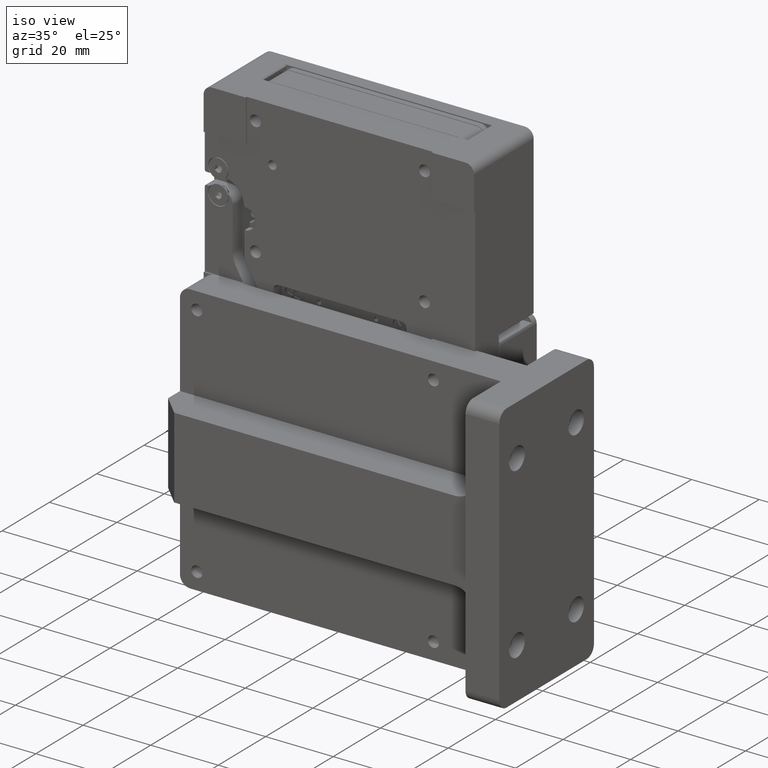
[diagram: clean part render]
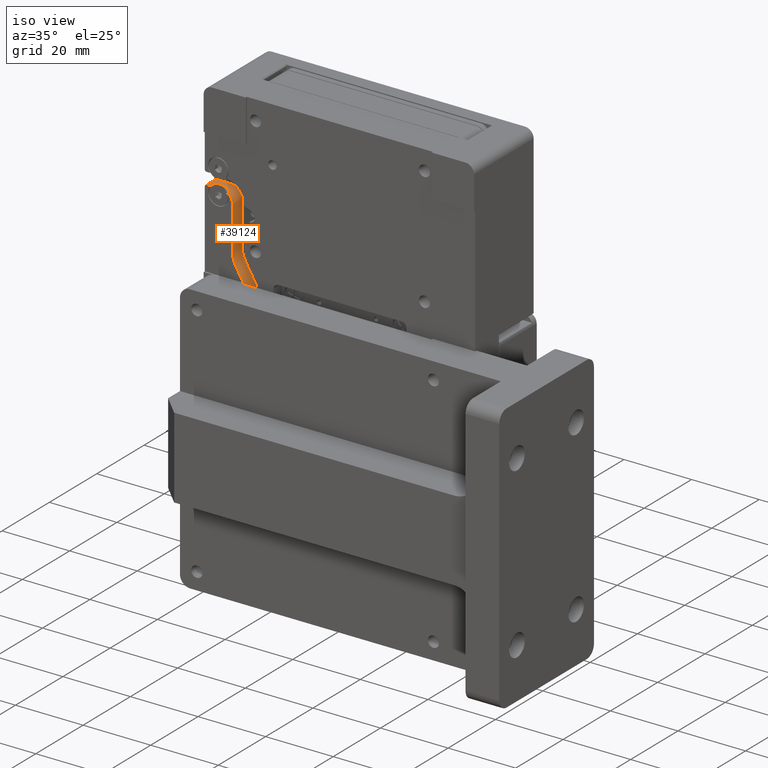
[diagram: same view with one face highlighted and labeled with its STEP entity id]
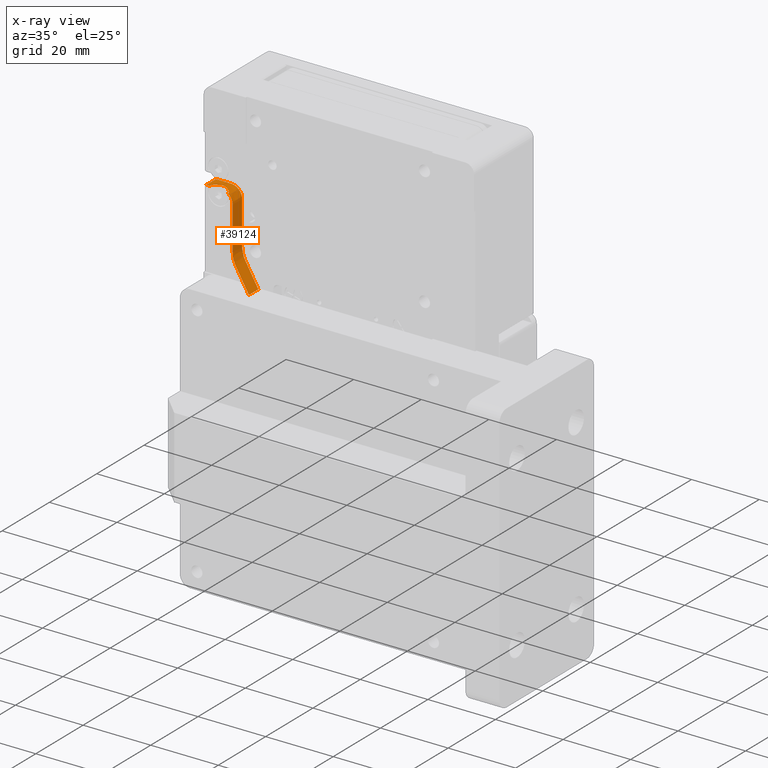
[diagram: x-ray of the same camera — body ghosted, the highlighted face saturated]
A machine part, iso view. The second image highlights one B-rep face of the part: STEP entity #39124.
The next image is the same camera in x-ray: the body ghosted, the highlighted face saturated — about 0% of this face is hidden behind the body in this view.
In plain terms, the highlighted face is a freeform B-spline surface patch.
Its self-contained STEP definition (entity closure, byte-faithful):
#59 = CARTESIAN_POINT ( 'NONE',  ( -40.66666666666665009, 4.000000000000000000, 63.25000000000000000 ) ) ;
#93 = CARTESIAN_POINT ( 'NONE',  ( -27.36379006146699311, 0.000000000000000000, 37.82625529245606089 ) ) ;
#135 = CARTESIAN_POINT ( 'NONE',  ( -21.84822560240176870, 2.666666666666665186, 33.78851776826356712 ) ) ;
#282 = CARTESIAN_POINT ( 'NONE',  ( -12.00000000000001066, 1.333333333333333703, 33.74999999999998579 ) ) ;
#394 = CARTESIAN_POINT ( 'NONE',  ( -20.63860028665336799, 0.000000000000000000, 33.74999999999998579 ) ) ;
#434 = CARTESIAN_POINT ( 'NONE',  ( -26.80749406829404435, 2.666666666666665186, 36.87236303386426073 ) ) ;
#490 = CARTESIAN_POINT ( 'NONE',  ( -35.24071082349463069, 1.792378387015036045, 63.25000039228666537 ) ) ;
#607 = CARTESIAN_POINT ( 'NONE',  ( -41.00000000000001421, 0.000000000000000000, 63.25000000000000000 ) ) ;
#769 = CARTESIAN_POINT ( 'NONE',  ( -33.00272268684264532, 2.666666666666665186, 62.59891676455066545 ) ) ;
#922 = CARTESIAN_POINT ( 'NONE',  ( -36.04166666666736774, 0.000000000000000000, 63.25000000000000000 ) ) ;
#1072 = CARTESIAN_POINT ( 'NONE',  ( -31.75000000000000000, 2.666666666666665186, 55.74401693586339945 ) ) ;
#1115 = CARTESIAN_POINT ( 'NONE',  ( -35.36253653822650733, 1.838292850034867199, 63.25000000000000000 ) ) ;
#1216 = CARTESIAN_POINT ( 'NONE',  ( -30.03593161180577908, 1.333333333333333703, 42.45454022265847271 ) ) ;
#1365 = CARTESIAN_POINT ( 'NONE',  ( -31.74999783876488024, 2.666666666666665186, 59.94513775231397545 ) ) ;
#1418 = CARTESIAN_POINT ( 'NONE',  ( -34.82387146805730538, 1.595647528569649864, 63.24573936384207684 ) ) ;
#1539 = CARTESIAN_POINT ( 'NONE',  ( -21.70160930715428904, 1.333333333333333703, 33.77407905654920484 ) ) ;
#1551 = CARTESIAN_POINT ( 'NONE',  ( -38.49799917551522555, 0.6999999999999999556, 63.25000003403559390 ) ) ;
#1682 = CARTESIAN_POINT ( 'NONE',  ( -35.00000000000000000, 3.999999999999993339, 63.25000000000001421 ) ) ;
#1692 = DIRECTION ( 'NONE',  ( 0.000000000000000000, 1.000000000000000000, 0.000000000000000000 ) ) ;
#1700 = CARTESIAN_POINT ( 'NONE',  ( -36.04166666666736774, 2.666666666666665186, 63.25000000000000000 ) ) ;
#1746 = CARTESIAN_POINT ( 'NONE',  ( -34.64981553040359330, 1.504724448835080164, 63.23113103348346442 ) ) ;
#1861 = CARTESIAN_POINT ( 'NONE',  ( -31.75000000000000000, 1.333333333333333703, 59.73400105849101749 ) ) ;
#2006 = CARTESIAN_POINT ( 'NONE',  ( -31.75000448872789605, 2.666666666666665186, 47.31018797517057806 ) ) ;
#2054 = CARTESIAN_POINT ( 'NONE',  ( -33.27466916498166682, 0.7000000000083844709, 62.75402226443426912 ) ) ;
#2163 = CARTESIAN_POINT ( 'NONE',  ( -31.65382424516506532, 1.333333333333333703, 46.05907921369576030 ) ) ;
#2307 = CARTESIAN_POINT ( 'NONE',  ( -20.63860028665336799, 4.000000000000000000, 33.74999999999998579 ) ) ;
#2470 = CARTESIAN_POINT ( 'NONE',  ( -31.75000000000000000, 1.333333333333333703, 58.93600423396216570 ) ) ;
#2563 = ORIENTED_EDGE ( 'NONE', *, *, #54253, .T. ) ;
#2640 = CARTESIAN_POINT ( 'NONE',  ( -20.92338930709282607, 4.000000000000000000, 33.74999999999998579 ) ) ;
#2955 = CARTESIAN_POINT ( 'NONE',  ( -21.24142123578217678, 4.000000000000000000, 33.75000736310119009 ) ) ;
#3006 = CARTESIAN_POINT ( 'NONE',  ( -31.75000000000000000, 0.000000000000000000, 59.86700052924555138 ) ) ;
#3261 = CARTESIAN_POINT ( 'NONE',  ( -31.71148223173639380, 4.000000000000000000, 46.49707385921924896 ) ) ;
#3300 = CARTESIAN_POINT ( 'NONE',  ( -31.74999263689848306, 0.000000000000000000, 47.10387822581379424 ) ) ;
#3492 = CARTESIAN_POINT ( 'NONE',  ( -31.75000000000000000, 0.000000000000000000, 52.55202963774444669 ) ) ;
#3584 = CARTESIAN_POINT ( 'NONE',  ( -26.28914368574667293, 4.000000000000000000, 36.15726467920666920 ) ) ;
#3621 = VERTEX_POINT ( 'NONE', #11397 ) ;
#3664 = CARTESIAN_POINT ( 'NONE',  ( -35.20833333333296622, 1.333333333333333703, 63.25000000000000000 ) ) ;
#3731 = CARTESIAN_POINT ( 'NONE',  ( -32.16032200300629285, 0.000000000000000000, 61.63707013859826844 ) ) ;
#3784 = ORIENTED_EDGE ( 'NONE', *, *, #50272, .T. ) ;
#3817 = CARTESIAN_POINT ( 'NONE',  ( -31.75000000000000000, 0.000000000000000000, 59.86700052924554427 ) ) ;
#3887 = CARTESIAN_POINT ( 'NONE',  ( -27.28281607509197926, 0.000000000000000000, 37.68600423396343757 ) ) ;
#3899 = CARTESIAN_POINT ( 'NONE',  ( -33.95295333651818481, 4.000000000000000000, 63.08407372249795486 ) ) ;
#3975 = CARTESIAN_POINT ( 'NONE',  ( -31.72592094345079516, 1.333333333333333703, 46.64369015446680322 ) ) ;
#4129 = CARTESIAN_POINT ( 'NONE',  ( -31.75000000000000000, 0.000000000000000000, 57.87200846792431719 ) ) ;
#4213 = CARTESIAN_POINT ( 'NONE',  ( -36.04166666666736774, 4.000000000000000000, 63.25000000000000000 ) ) ;
#4287 = CARTESIAN_POINT ( 'NONE',  ( -31.34886662556419523, 2.666666666666665186, 44.92096188319602845 ) ) ;
#4348 = CARTESIAN_POINT ( 'NONE',  ( -31.85386697487141561, 0.000000000000000000, 60.84236556245637217 ) ) ;
#4443 = CARTESIAN_POINT ( 'NONE',  ( -32.16032200300629285, 0.000000000000000000, 61.63707013859826844 ) ) ;
#4579 = CARTESIAN_POINT ( 'NONE',  ( -27.12086810234469070, 0.000000000000000000, 37.40550211698194971 ) ) ;
#4622 = CARTESIAN_POINT ( 'NONE',  ( -26.64388672837537086, 2.666666666666665186, 36.62750425610133931 ) ) ;
#4692 = CARTESIAN_POINT ( 'NONE',  ( -31.79165626549485779, 0.000000000000000000, 60.52947017817368192 ) ) ;
#4784 = CARTESIAN_POINT ( 'NONE',  ( -31.17980258390723947, 0.000000000000000000, 44.51281840016753222 ) ) ;
#4871 = CARTESIAN_POINT ( 'NONE',  ( -31.79165626549485779, 4.000000000000000000, 60.52947017817368192 ) ) ;
#4910 = CARTESIAN_POINT ( 'NONE',  ( -27.03989411597076753, 0.000000000000000000, 37.26525105849089670 ) ) ;
#4947 = CARTESIAN_POINT ( 'NONE',  ( -38.33333333333354886, 1.333333333333333703, 63.25000000000000000 ) ) ;
#4990 = CARTESIAN_POINT ( 'NONE',  ( -34.47052982182634651, 3.999999999999903633, 63.20834373450458088 ) ) ;
#5035 = CARTESIAN_POINT ( 'NONE',  ( -36.69549930268154014, 1.816866710770312920, 63.25000000000001421 ) ) ;
#5038 = CARTESIAN_POINT ( 'NONE',  ( -30.84567147554493260, 3.999999999999984457, 43.85705080756851970 ) ) ;
#5092 = CARTESIAN_POINT ( 'NONE',  ( -35.83333333333335702, 0.000000000000000000, 63.25000000000000000 ) ) ;
#5206 = CARTESIAN_POINT ( 'NONE',  ( -21.70160930715428904, 0.000000000000000000, 33.77407905654920484 ) ) ;
#5248 = CARTESIAN_POINT ( 'NONE',  ( -24.99837948128131160, 2.666666666666665186, 34.94885269487868840 ) ) ;
#5291 = CARTESIAN_POINT ( 'NONE',  ( -35.17925731711762438, 1.766121844751865622, 63.25000100706186856 ) ) ;
#5390 = CARTESIAN_POINT ( 'NONE',  ( -39.16666666666649377, 0.000000000000000000, 63.25000000000000000 ) ) ;
#5441 = CARTESIAN_POINT ( 'NONE',  ( -31.75000000000000000, 0.000000000000000000, 55.74401693586339945 ) ) ;
#5472 = CARTESIAN_POINT ( 'NONE',  ( -26.95892012959682305, 0.000000000000000000, 37.12499999999990763 ) ) ;
#5502 = VERTEX_POINT ( 'NONE', #36414 ) ;
#5545 = CARTESIAN_POINT ( 'NONE',  ( -34.78749072682091992, 2.666666666666665186, 63.24348035358485731 ) ) ;
#5600 = CARTESIAN_POINT ( 'NONE',  ( -34.99826229297263325, 1.683256447855297377, 63.25005601357381835 ) ) ;
#5677 = VERTEX_POINT ( 'NONE', #5472 ) ;
#5715 = CARTESIAN_POINT ( 'NONE',  ( -29.22619174806662912, 1.333333333333333703, 41.05202963775293767 ) ) ;
#5795 = CARTESIAN_POINT ( 'NONE',  ( -30.68372350279708982, 0.000000000000000000, 43.57654869058647762 ) ) ;
#5871 = CARTESIAN_POINT ( 'NONE',  ( -31.75000000000000000, 2.666666666666665186, 48.29604657360464159 ) ) ;
#5916 = CARTESIAN_POINT ( 'NONE',  ( -35.28002817007373437, 1.807722755609592502, 63.25000009127820988 ) ) ;
#6030 = CARTESIAN_POINT ( 'NONE',  ( -24.99837948128131160, 1.333333333333333703, 34.94885269487868840 ) ) ;
#6044 = CARTESIAN_POINT ( 'NONE',  ( -39.50000000000000711, 3.999999999999994227, 63.25000000000000000 ) ) ;
#6179 = CARTESIAN_POINT ( 'NONE',  ( -33.95295333651818481, 2.666666666666665186, 63.08407372249795486 ) ) ;
#6220 = CARTESIAN_POINT ( 'NONE',  ( -34.89400840591441977, 1.631173393743389211, 63.24838460298287401 ) ) ;
#6328 = CARTESIAN_POINT ( 'NONE',  ( -27.28281607509197926, 1.333333333333333703, 37.68600423396343757 ) ) ;
#6372 = VERTEX_POINT ( 'NONE', #32729 ) ;
#6476 = CARTESIAN_POINT ( 'NONE',  ( -31.91592627750432953, 2.666666666666665186, 61.04704666348071385 ) ) ;
#6486 = CARTESIAN_POINT ( 'NONE',  ( -36.21975126380786492, 1.950000000013524026, 63.25000000000000000 ) ) ;
#6525 = CARTESIAN_POINT ( 'NONE',  ( -35.45377360684641133, 1.869004610198921279, 63.25000000000000000 ) ) ;
#6641 = CARTESIAN_POINT ( 'NONE',  ( -31.75000000000000000, 1.333333333333333703, 47.56454948445460928 ) ) ;
#6698 = CARTESIAN_POINT ( 'NONE',  ( -31.75000000000000000, 0.000000000000000000, 59.66750132311378962 ) ) ;
#6803 = CARTESIAN_POINT ( 'NONE',  ( -31.75000000000000000, 2.666666666666665186, 52.55202963774444669 ) ) ;
#6962 = CARTESIAN_POINT ( 'NONE',  ( -30.90975138977675130, 1.333333333333333703, 43.96805520096576458 ) ) ;
#7067 = CARTESIAN_POINT ( 'NONE',  ( -30.84567147554202649, 0.000000000000000000, 43.85705080756348906 ) ) ;
#7113 = CARTESIAN_POINT ( 'NONE',  ( -20.73352996013277760, 4.000000000000000000, 33.74999999999998579 ) ) ;
#7199 = CARTESIAN_POINT ( 'NONE',  ( -31.74999999999999289, 0.000000000000000000, 47.23205080754610918 ) ) ;
#7212 = CARTESIAN_POINT ( 'NONE',  ( -33.24883601178812143, 0.6999999999974078069, 62.73783251397234295 ) ) ;
#7275 = CARTESIAN_POINT ( 'NONE',  ( -31.71148223173639380, 1.333333333333333703, 46.49707385921924896 ) ) ;
#7417 = CARTESIAN_POINT ( 'NONE',  ( -30.76469748917101299, 4.000000000000000000, 43.71679974907753063 ) ) ;
#7753 = CARTESIAN_POINT ( 'NONE',  ( -22.28622024792360179, 4.000000000000000000, 33.84617575483498086 ) ) ;
#7876 = B_SPLINE_CURVE_WITH_KNOTS ( 'NONE', 3,
 ( #19336, #22826, #28244, #56663, #3731, #42298, #4348, #4692, #33652, #52499, #24116, #18678, #62072, #23151 ),
 .UNSPECIFIED., .F., .F.,
 ( 4, 2, 2, 2, 2, 2, 4 ),
 ( 0.000000000000000000, 0.2010446894907275128, 0.6005223447453643670, 0.8002611723726821280, 0.9001305861863404534, 0.9500652930931702267, 1.000000000000000000 ),
 .UNSPECIFIED. ) ;
#8055 = CARTESIAN_POINT ( 'NONE',  ( -27.03989411597077108, 0.000000000000000000, 37.26525105849090380 ) ) ;
#8066 = CARTESIAN_POINT ( 'NONE',  ( -30.90975138977675130, 4.000000000000000000, 43.96805520096576458 ) ) ;
#8279 = CARTESIAN_POINT ( 'NONE',  ( -28.25450391157959729, 0.000000000000000000, 39.36901693585628692 ) ) ;
#8365 = CARTESIAN_POINT ( 'NONE',  ( -30.19787958455356502, 4.000000000000000000, 42.73504233964035137 ) ) ;
#8440 = CARTESIAN_POINT ( 'NONE',  ( -34.47052982182634651, 1.333333333333333703, 63.20834373450458088 ) ) ;
#8553 = LINE ( 'NONE', #56389, #21431 ) ;
#8587 = CARTESIAN_POINT ( 'NONE',  ( -31.75000000000000000, 0.000000000000000000, 59.66750132311378962 ) ) ;
#8683 = CARTESIAN_POINT ( 'NONE',  ( -31.76042888707210921, 4.000000000000000000, 60.26552477507218697 ) ) ;
#8764 = CARTESIAN_POINT ( 'NONE',  ( -31.75651964641513914, 1.333333333333333703, 60.21250927317937851 ) ) ;
#8894 = VECTOR ( 'NONE', #58521, 1000.000000000000000 ) ;
#8910 = CARTESIAN_POINT ( 'NONE',  ( -28.61880215351755297, -1.110223024625156540E-14, 39.99999999999975842 ) ) ;
#8916 = CARTESIAN_POINT ( 'NONE',  ( -31.44375894665713744, 0.000000000000000000, 45.20048927840824859 ) ) ;
#9000 = CARTESIAN_POINT ( 'NONE',  ( -35.52083333333329307, 4.000000000000000000, 63.25000000000000000 ) ) ;
#9079 = CARTESIAN_POINT ( 'NONE',  ( -19.59437387837597200, 2.666666666666665186, 33.74999999999998579 ) ) ;
#9228 = CARTESIAN_POINT ( 'NONE',  ( -31.65382424516506532, 0.000000000000000000, 46.05907921369576030 ) ) ;
#9347 = CARTESIAN_POINT ( 'NONE',  ( -21.40775171531099730, 0.000000000000000000, 33.75482033281529226 ) ) ;
#9382 = CARTESIAN_POINT ( 'NONE',  ( -20.92338930709282607, 2.666666666666665186, 33.74999999999998579 ) ) ;
#9424 = CARTESIAN_POINT ( 'NONE',  ( -31.75651964641513914, 3.999999999999903633, 60.21250927317937851 ) ) ;
#9535 = CARTESIAN_POINT ( 'NONE',  ( -30.19787958455356502, 0.000000000000000000, 42.73504233964035137 ) ) ;
#9629 = CARTESIAN_POINT ( 'NONE',  ( -31.75000000000000000, 4.000000000000000000, 49.89204022265836613 ) ) ;
#9663 = CARTESIAN_POINT ( 'NONE',  ( -27.00649706699110197, 0.000000000000000000, 37.20739474135683622 ) ) ;
#9705 = CARTESIAN_POINT ( 'NONE',  ( -31.11899872742548112, 2.666666666666665186, 44.37862560801708156 ) ) ;
#9791 = CARTESIAN_POINT ( 'NONE',  ( -38.43669858621245083, 0.7000000000085819796, 63.24999999999686651 ) ) ;
#9860 = CARTESIAN_POINT ( 'NONE',  ( -34.89366412677703266, 0.000000000000000000, 63.24869476517279310 ) ) ;
#9943 = CARTESIAN_POINT ( 'NONE',  ( -33.36292986140405503, 4.000000000000000000, 62.83967799698918100 ) ) ;
#9982 = CARTESIAN_POINT ( 'NONE',  ( -19.21465518445839393, 0.000000000000000000, 33.74999999999998579 ) ) ;
#10016 = CARTESIAN_POINT ( 'NONE',  ( -30.52177553005149235, 2.666666666666665186, 43.29604657360612663 ) ) ;
#10034 = LINE ( 'NONE', #55208, #52832 ) ;
#10063 = CARTESIAN_POINT ( 'NONE',  ( -35.24567645106221647, 1.794349797332173813, 63.25000034743029431 ) ) ;
#10162 = CARTESIAN_POINT ( 'NONE',  ( -37.08333333333327175, 0.000000000000000000, 63.25000000000000000 ) ) ;
#10321 = CARTESIAN_POINT ( 'NONE',  ( -21.40775171531099730, 2.666666666666665186, 33.75482033281529226 ) ) ;
#10366 = CARTESIAN_POINT ( 'NONE',  ( -35.07041282744602739, 1.717912714659950879, 63.25000142963016714 ) ) ;
#10407 = CARTESIAN_POINT ( 'NONE',  ( -37.34243848513868613, 1.494424556627099943, 63.25000000000000000 ) ) ;
#10467 = CARTESIAN_POINT ( 'NONE',  ( -27.03989411597076753, 1.333333333333333703, 37.26525105849089670 ) ) ;
#10629 = CARTESIAN_POINT ( 'NONE',  ( -33.36292986140405503, 2.666666666666665186, 62.83967799698918100 ) ) ;
#10678 = CARTESIAN_POINT ( 'NONE',  ( -35.12715172540313802, 1.743571595833220078, 63.25000142403266779 ) ) ;
#10796 = CARTESIAN_POINT ( 'NONE',  ( -19.59437387837597200, 1.333333333333333703, 33.74999999999998579 ) ) ;
#10953 = CARTESIAN_POINT ( 'NONE',  ( -31.75651964641513914, 2.666666666666665186, 60.21250927317937851 ) ) ;
#11000 = CARTESIAN_POINT ( 'NONE',  ( -34.93049020612577493, 1.649739673122506467, 63.24939199864600425 ) ) ;
#11109 = CARTESIAN_POINT ( 'NONE',  ( -20.92338930709282607, 1.333333333333333703, 33.74999999999998579 ) ) ;
#11239 = ORIENTED_EDGE ( 'NONE', *, *, #19458, .T. ) ;
#11257 = CARTESIAN_POINT ( 'NONE',  ( -31.75000000000000000, 2.666666666666665186, 49.36004233964246879 ) ) ;
#11296 = CARTESIAN_POINT ( 'NONE',  ( -34.91089743644214138, 1.639783886406262381, 63.24891559741348601 ) ) ;
#11397 = CARTESIAN_POINT ( 'NONE',  ( -31.75000000000000000, 4.000000000000003553, 60.00000000000005684 ) ) ;
#11410 = CARTESIAN_POINT ( 'NONE',  ( -31.79165626549485779, 1.333333333333333703, 60.52947017817368192 ) ) ;
#11460 = CARTESIAN_POINT ( 'NONE',  ( -31.75000000000000000, 0.000000000000000000, 52.55202963774444669 ) ) ;
#11521 = DIRECTION ( 'NONE',  ( -0.5000000000000126565, 0.000000000000000000, 0.8660254037844312691 ) ) ;
#11557 = CARTESIAN_POINT ( 'NONE',  ( -34.89366412677703266, 2.666666666666665186, 63.24869476517279310 ) ) ;
#11625 = VERTEX_POINT ( 'NONE', #53151 ) ;
#11721 = CARTESIAN_POINT ( 'NONE',  ( -33.95295333651818481, 1.333333333333333703, 63.08407372249795486 ) ) ;
#11880 = CARTESIAN_POINT ( 'NONE',  ( -35.08593744674133319, 2.666666666666665186, 63.25000338540682776 ) ) ;
#12040 = CARTESIAN_POINT ( 'NONE',  ( -31.75000448872789605, 1.333333333333333703, 47.31018797517057806 ) ) ;
#12074 = ORIENTED_EDGE ( 'NONE', *, *, #42940, .T. ) ;
#12192 = CARTESIAN_POINT ( 'NONE',  ( -30.03593161180577908, 4.000000000000000000, 42.45454022265847271 ) ) ;
#12234 = CARTESIAN_POINT ( 'NONE',  ( -33.94319686675945036, 1.110428086793717517, 63.07345621785148637 ) ) ;
#12329 = ORIENTED_EDGE ( 'NONE', *, *, #24793, .T. ) ;
#12488 = CARTESIAN_POINT ( 'NONE',  ( -28.25450391157959729, 4.000000000000000000, 39.36901693585628692 ) ) ;
#12524 = CARTESIAN_POINT ( 'NONE',  ( -30.90975138976751069, 0.000000000000000000, 43.96805520094862629 ) ) ;
#12534 = CARTESIAN_POINT ( 'NONE',  ( -33.39712245465837981, 0.7789970592487005518, 62.82936076819603244 ) ) ;
#12609 = CARTESIAN_POINT ( 'NONE',  ( -35.00000000000000000, 3.999999999999993339, 63.25000000000001421 ) ) ;
#12821 = CARTESIAN_POINT ( 'NONE',  ( -20.35381126621427583, 4.000000000000000000, 33.74999999999998579 ) ) ;
#12975 = ORIENTED_EDGE ( 'NONE', *, *, #19190, .T. ) ;
#13054 = CARTESIAN_POINT ( 'NONE',  ( -30.79810400508932133, 0.000000000000000000, 43.77465060047295964 ) ) ;
#13143 = CARTESIAN_POINT ( 'NONE',  ( -31.75000000000000000, 4.000000000000000000, 47.36505027832308912 ) ) ;
#13177 = CARTESIAN_POINT ( 'NONE',  ( -30.84567147554202649, 0.000000000000000000, 43.85705080756348906 ) ) ;
#13214 = CARTESIAN_POINT ( 'NONE',  ( -30.76469748917101299, 1.333333333333333703, 43.71679974907753063 ) ) ;
#13358 = CARTESIAN_POINT ( 'NONE',  ( -31.75000000000000000, 0.000000000000000000, 47.76404869058706737 ) ) ;
#13448 = CARTESIAN_POINT ( 'NONE',  ( -30.98874847550160894, 4.000000000000000000, 44.11450810651874122 ) ) ;
#13485 = CARTESIAN_POINT ( 'NONE',  ( -31.44375894665713744, 0.000000000000000000, 45.20048927840824859 ) ) ;
#13520 = CARTESIAN_POINT ( 'NONE',  ( -31.11899872742548112, 1.333333333333333703, 44.37862560801708156 ) ) ;
#13670 = CARTESIAN_POINT ( 'NONE',  ( -29.22619174806662912, 0.000000000000000000, 41.05202963775293767 ) ) ;
#13769 = CARTESIAN_POINT ( 'NONE',  ( -31.75000000000000000, 4.000000000000000000, 58.67000529245698459 ) ) ;
#13854 = CARTESIAN_POINT ( 'NONE',  ( -30.44080154367537361, 2.666666666666665186, 43.15579551511351752 ) ) ;
#13879 = VERTEX_POINT ( 'NONE', #37546 ) ;
#13946 = CARTESIAN_POINT ( 'NONE',  ( -30.90975138977326253, 3.999999999999968914, 43.96805520095929865 ) ) ;
#14010 = CARTESIAN_POINT ( 'NONE',  ( -31.74999783876488024, 0.000000000000000000, 59.94513775231397545 ) ) ;
#14092 = CARTESIAN_POINT ( 'NONE',  ( -31.75000000000000000, 4.000000000000000000, 48.56204551511256540 ) ) ;
#14126 = CARTESIAN_POINT ( 'NONE',  ( -26.80749406829404435, 0.000000000000000000, 36.87236303386426073 ) ) ;
#14169 = CARTESIAN_POINT ( 'NONE',  ( -19.21465518445839393, 2.666666666666665186, 33.74999999999998579 ) ) ;
#14255 = CARTESIAN_POINT ( 'NONE',  ( -37.31747287069291019, 1.509512790853051900, 63.25000000000000000 ) ) ;
#14319 = CARTESIAN_POINT ( 'NONE',  ( -34.15763443754364204, 0.000000000000000000, 63.14613302512972837 ) ) ;
#14396 = CARTESIAN_POINT ( 'NONE',  ( -31.75000265889230988, 4.000000000000000000, 60.06749511283772591 ) ) ;
#14434 = CARTESIAN_POINT ( 'NONE',  ( -20.92338930709282607, 0.000000000000000000, 33.74999999999998579 ) ) ;
#14468 = CARTESIAN_POINT ( 'NONE',  ( -25.46963423921565095, 2.666666666666665186, 35.31044403914532381 ) ) ;
#14606 = VERTEX_POINT ( 'NONE', #7067 ) ;
#14622 = CARTESIAN_POINT ( 'NONE',  ( -26.28914368574667293, 1.333333333333333703, 36.15726467920666920 ) ) ;
#14717 = CARTESIAN_POINT ( 'NONE',  ( -31.75000000000000000, 4.000000000000000000, 57.34001058490658664 ) ) ;
#14753 = FACE_OUTER_BOUND ( 'NONE', #22094, .T. ) ;
#14793 = CARTESIAN_POINT ( 'NONE',  ( -15.03774955135187952, 2.666666666666665186, 33.74999999999998579 ) ) ;
#14839 = CARTESIAN_POINT ( 'NONE',  ( -35.74430277790356314, 1.935996355565504423, 63.24999999999997158 ) ) ;
#14951 = CARTESIAN_POINT ( 'NONE',  ( -27.16135509553192051, 1.333333333333333703, 37.47562764622770004 ) ) ;
#15024 = EDGE_CURVE ( 'NONE', #36601, #36621, #8553, .T. ) ;
#15108 = CARTESIAN_POINT ( 'NONE',  ( -28.25450391157959729, 2.666666666666665186, 39.36901693585628692 ) ) ;
#15152 = CARTESIAN_POINT ( 'NONE',  ( -31.75000265889232054, 3.999999999999905409, 60.06749511283774012 ) ) ;
#15195 = LINE ( 'NONE', #34927, #58890 ) ;
#15255 = CARTESIAN_POINT ( 'NONE',  ( -34.57580695942726834, 0.000000000000000000, 63.22395066213098858 ) ) ;
#15413 = CARTESIAN_POINT ( 'NONE',  ( -35.20833333333296622, 2.666666666666665186, 63.25000000000000000 ) ) ;
#15563 = CARTESIAN_POINT ( 'NONE',  ( -29.55008769356217613, 1.333333333333333703, 41.61303387171213330 ) ) ;
#15616 = CARTESIAN_POINT ( 'NONE',  ( -31.75000000000000000, 0.000000000000000000, 47.49804974907763722 ) ) ;
#15652 = EDGE_CURVE ( 'NONE', #23802, #3621, #35994, .T. ) ;
#15736 = CARTESIAN_POINT ( 'NONE',  ( -31.75000000000000000, 2.666666666666665186, 48.56204551511256540 ) ) ;
#15899 = CARTESIAN_POINT ( 'NONE',  ( -30.44080154367537361, 1.333333333333333703, 43.15579551511351752 ) ) ;
#16046 = CARTESIAN_POINT ( 'NONE',  ( -31.75000000000000000, 2.666666666666665186, 54.68002116982417249 ) ) ;
#16094 = CARTESIAN_POINT ( 'NONE',  ( -34.96530181335387510, 1.666943697392182511, 63.24988180044837094 ) ) ;
#16207 = CARTESIAN_POINT ( 'NONE',  ( -31.74999783876488024, 1.333333333333333703, 59.94513775231397545 ) ) ;
#16255 = VERTEX_POINT ( 'NONE', #33997 ) ;
#16295 = CARTESIAN_POINT ( 'NONE',  ( -38.49799916756715845, 0.000000000000000000, 63.25000003403560811 ) ) ;
#16352 = CARTESIAN_POINT ( 'NONE',  ( -40.66666666666665009, 2.666666666666665186, 63.25000000000000000 ) ) ;
#16504 = CARTESIAN_POINT ( 'NONE',  ( -34.57580695942726834, 1.333333333333333703, 63.22395066213098858 ) ) ;
#16511 = EDGE_CURVE ( 'NONE', #57686, #37500, #35825, .T. ) ;
#16654 = CARTESIAN_POINT ( 'NONE',  ( -31.75000000000000000, 2.666666666666665186, 59.33500264622848874 ) ) ;
#16699 = CARTESIAN_POINT ( 'NONE',  ( -33.90162894964379348, 1.086019842735978846, 63.05877558620258583 ) ) ;
#16818 = CARTESIAN_POINT ( 'NONE',  ( -28.61880215351755297, -1.110223024625156540E-14, 39.99999999999975842 ) ) ;
#16819 = CARTESIAN_POINT ( 'NONE',  ( -31.44375894665713744, 1.333333333333333703, 45.20048927840824859 ) ) ;
#16908 = B_SPLINE_CURVE_WITH_KNOTS ( 'NONE', 3,
 ( #9791, #58577, #24138, #55270, #60067, #29205, #10407, #24738, #14255, #49012, #53781, #30679, #57963, #48718, #34622, #54094, #24445, #5035, #23798, #50171, #6486, #43908 ),
 .UNSPECIFIED., .F., .F.,
 ( 4, 1, 1, 1, 1, 1, 1, 2, 2, 1, 1, 1, 1, 2, 2, 4 ),
 ( 0.000000000000000000, 0.2500000000001412204, 0.3750000000002117195, 0.4375000000002435274, 0.4687500000002593481, 0.4843750000002673417, 0.4921875000002673417, 0.4960937500002634559, 0.5000000000002595701, 0.6250000000001768585, 0.6875000000001355582, 0.7187500000001150191, 0.7343750000001045830, 0.7421875000000994760, 0.7500000000000943690, 1.000000000000000000 ),
 .UNSPECIFIED. ) ;
#16978 = CARTESIAN_POINT ( 'NONE',  ( -27.76865999333599433, 4.000000000000000000, 38.52751058490994751 ) ) ;
#17104 = VERTEX_POINT ( 'NONE', #7199 ) ;
#17287 = CARTESIAN_POINT ( 'NONE',  ( -27.36379006146699311, 4.000000000000000000, 37.82625529245606089 ) ) ;
#17327 = CARTESIAN_POINT ( 'NONE',  ( -31.71148223173639380, 0.000000000000000000, 46.49707385921924896 ) ) ;
#17594 = CARTESIAN_POINT ( 'NONE',  ( -15.03774955135187952, 4.000000000000000000, 33.74999999999998579 ) ) ;
#17916 = CARTESIAN_POINT ( 'NONE',  ( -30.52177553005149235, 4.000000000000000000, 43.29604657360612663 ) ) ;
#17953 = EDGE_CURVE ( 'NONE', #36099, #16255, #57104, .T. ) ;
#17992 = CARTESIAN_POINT ( 'NONE',  ( -32.40108323544483682, 1.333333333333333703, 61.99727731316194479 ) ) ;
#18147 = CARTESIAN_POINT ( 'NONE',  ( -30.98874847550160894, 0.000000000000000000, 44.11450810651874122 ) ) ;
#18228 = CARTESIAN_POINT ( 'NONE',  ( -27.16135509553192051, 0.000000000000000000, 37.47562764622770004 ) ) ;
#18241 = CARTESIAN_POINT ( 'NONE',  ( -23.42934315793198863, 4.000000000000000000, 34.13248143414143954 ) ) ;
#18310 = CARTESIAN_POINT ( 'NONE',  ( -35.83333333333335702, 1.333333333333333703, 63.25000000000000000 ) ) ;
#18463 = CARTESIAN_POINT ( 'NONE',  ( -31.71148223173639380, 0.000000000000000000, 46.49707385921924896 ) ) ;
#18545 = CARTESIAN_POINT ( 'NONE',  ( -31.75651964641513914, 4.000000000000000000, 60.21250927317937851 ) ) ;
#18618 = CARTESIAN_POINT ( 'NONE',  ( -36.66666666666532848, 1.333333333333333703, 63.25000000000000000 ) ) ;
#18658 = CARTESIAN_POINT ( 'NONE',  ( -31.76042888707210921, 3.999999999999903633, 60.26552477507218697 ) ) ;
#18678 = CARTESIAN_POINT ( 'NONE',  ( -31.75130523482720690, 0.000000000000000000, 60.10633587322271154 ) ) ;
#18773 = CARTESIAN_POINT ( 'NONE',  ( -31.75000000000000000, 0.000000000000000000, 49.36004233964246879 ) ) ;
#18791 = B_SPLINE_CURVE_WITH_KNOTS ( 'NONE', 3,
 ( #59466, #25336, #14839, #34268, #6525, #1115, #35514, #54056, #5916, #43867, #54995, #54360, #10063, #29472, #490, #54696, #5291, #29774, #10678, #48975, #19932, #30098, #34583, #10366, #20545, #49270, #5600, #16094, #25027, #11000, #44501, #11296, #49900, #20243, #6220, #25643, #45106, #1418, #40325, #59795, #1746, #36756, #36452, #26266, #60103, #21778, #21481, #31037, #61342, #21179, #55933, #26566, #60394, #12234, #31349, #16699, #45435, #56237, #45745, #12534, #32295, #2054 ),
 .UNSPECIFIED., .F., .F.,
 ( 4, 2, 1, 2, 2, 1, 1, 2, 2, 2, 2, 2, 1, 2, 2, 2, 2, 2, 1, 2, 2, 2, 2, 1, 1, 1, 2, 2, 2, 2, 1, 1, 2, 2, 2, 4 ),
 ( 0.000000000000000000, 0.1250000000014226953, 0.1875000000021340429, 0.2187500000024864555, 0.2343750000026627311, 0.2421875000027477187, 0.2460937500027901847, 0.2480468750028144431, 0.2500000000028386737, 0.2812500000027293168, 0.2968750000026775804, 0.3046875000026496583, 0.3085937500026356695, 0.3105468750026286751, 0.3125000000026216807, 0.3437500000025385249, 0.3593750000024967806, 0.3671875000024759084, 0.3710937500024654168, 0.3730468750024601432, 0.3750000000024548141, 0.4375000000022800095, 0.4687500000021926350, 0.4843750000021484481, 0.4921875000021268542, 0.4960937500021165847, 0.4980468750021095348, 0.5000000000021024293, 0.6250000000015933921, 0.6875000000013361534, 0.7187500000012099211, 0.7343750000011491919, 0.7421875000011172174, 0.7500000000010852430, 0.8750000000005425660, 1.000000000000000000 ),
 .UNSPECIFIED. ) ;
#18870 = CARTESIAN_POINT ( 'NONE',  ( -36.66666666666532848, 4.000000000000000000, 63.25000000000000000 ) ) ;
#18953 = CARTESIAN_POINT ( 'NONE',  ( -36.04166666666736774, 1.333333333333333703, 63.25000000000000000 ) ) ;
#19110 = CARTESIAN_POINT ( 'NONE',  ( -33.00272268684264532, 0.000000000000000000, 62.59891676455066545 ) ) ;
#19190 = EDGE_CURVE ( 'NONE', #39646, #60905, #22942, .T. ) ;
#19232 = CARTESIAN_POINT ( 'NONE',  ( -20.73352996013277760, 0.000000000000000000, 33.74999999999998579 ) ) ;
#19272 = CARTESIAN_POINT ( 'NONE',  ( -30.79810400508932133, 2.666666666666665186, 43.77465060047295964 ) ) ;
#19303 = LINE ( 'NONE', #39048, #8894 ) ;
#19336 = CARTESIAN_POINT ( 'NONE',  ( -33.19786203631736043, 0.000000000000000000, 62.70437653268598410 ) ) ;
#19416 = CARTESIAN_POINT ( 'NONE',  ( -30.52177553005149235, 0.000000000000000000, 43.29604657360612663 ) ) ;
#19458 = EDGE_CURVE ( 'NONE', #36117, #6372, #29503, .T. ) ;
#19468 = CARTESIAN_POINT ( 'NONE',  ( -31.75000000000000000, 0.000000000000000000, 60.00000000000005684 ) ) ;
#19488 = CARTESIAN_POINT ( 'NONE',  ( -29.55008769356217613, 0.000000000000000000, 41.61303387171213330 ) ) ;
#19528 = CARTESIAN_POINT ( 'NONE',  ( -21.00170631835747770, 0.000000000000000000, 33.74999359225274986 ) ) ;
#19566 = CARTESIAN_POINT ( 'NONE',  ( -22.28622024792360179, 2.666666666666665186, 33.84617575483498086 ) ) ;
#19716 = CARTESIAN_POINT ( 'NONE',  ( -22.28622024792360179, 1.333333333333333703, 33.84617575483498086 ) ) ;
#19776 = CARTESIAN_POINT ( 'NONE',  ( -31.75000000000000000, 0.000000000000000000, 57.87200846792431719 ) ) ;
#19803 = CARTESIAN_POINT ( 'NONE',  ( -32.16032200300629285, 4.000000000000000000, 61.63707013859826844 ) ) ;
#19841 = CARTESIAN_POINT ( 'NONE',  ( -26.28914368574667293, 0.000000000000000000, 36.15726467920666920 ) ) ;
#19881 = CARTESIAN_POINT ( 'NONE',  ( -37.08333333333327175, 1.333333333333333703, 63.25000000000000000 ) ) ;
#19932 = CARTESIAN_POINT ( 'NONE',  ( -35.09656999329656912, 1.729940976927132334, 63.25000150841399460 ) ) ;
#19978 = DIRECTION ( 'NONE',  ( 0.000000000000000000, 1.000000000000000000, 0.000000000000000000 ) ) ;
#20046 = CARTESIAN_POINT ( 'NONE',  ( -21.00170631835747770, 1.333333333333333703, 33.74999359225274986 ) ) ;
#20124 = CARTESIAN_POINT ( 'NONE',  ( -30.76469748917061509, 0.000000000000000000, 43.71679974907683430 ) ) ;
#20200 = CARTESIAN_POINT ( 'NONE',  ( -31.75000000000000000, 2.666666666666665186, 47.49804974907763722 ) ) ;
#20243 = CARTESIAN_POINT ( 'NONE',  ( -34.89834516974309508, 1.633378898728693462, 63.24853112614750472 ) ) ;
#20351 = CARTESIAN_POINT ( 'NONE',  ( -35.08593744674133319, 0.000000000000000000, 63.25000338540682776 ) ) ;
#20390 = ORIENTED_EDGE ( 'NONE', *, *, #42425, .T. ) ;
#20500 = CARTESIAN_POINT ( 'NONE',  ( -31.75000265889230988, 2.666666666666665186, 60.06749511283772591 ) ) ;
#20545 = CARTESIAN_POINT ( 'NONE',  ( -35.06603652358477063, 1.715856498782903472, 63.25000139854117265 ) ) ;
#20640 = CARTESIAN_POINT ( 'NONE',  ( -30.19787958455356502, 1.333333333333333703, 42.73504233964035137 ) ) ;
#20736 = CARTESIAN_POINT ( 'NONE',  ( -39.16599972252454620, 0.000000000000000000, 63.25000000000000000 ) ) ;
#20808 = CARTESIAN_POINT ( 'NONE',  ( -34.15763443754364204, 2.666666666666665186, 63.14613302512972837 ) ) ;
#20858 = B_SPLINE_CURVE_WITH_KNOTS ( 'NONE', 3,
 ( #40534, #20736, #60003, #16295 ),
 .UNSPECIFIED., .F., .F.,
 ( 4, 4 ),
 ( 0.02920409279496184382, 0.04871244298908655040 ),
 .UNSPECIFIED. ) ;
#20977 = CARTESIAN_POINT ( 'NONE',  ( -40.33333333333340676, 0.000000000000000000, 63.25000000000000000 ) ) ;
#21071 = DIRECTION ( 'NONE',  ( 0.000000000000000000, 2.478176394252580155E-16, -1.000000000000000000 ) ) ;
#21135 = CARTESIAN_POINT ( 'NONE',  ( -36.66666666666532848, 2.666666666666665186, 63.25000000000000000 ) ) ;
#21179 = CARTESIAN_POINT ( 'NONE',  ( -34.19908875803804449, 1.257651414417428448, 63.15027473068429487 ) ) ;
#21293 = CARTESIAN_POINT ( 'NONE',  ( -31.77604933787014119, 1.333333333333333703, 60.42419304057388985 ) ) ;
#21402 = LINE ( 'NONE', #30632, #52815 ) ;
#21431 = VECTOR ( 'NONE', #47475, 1000.000000000000000 ) ;
#21434 = CARTESIAN_POINT ( 'NONE',  ( -31.75000000000000000, 2.666666666666665186, 47.36505027832308912 ) ) ;
#21481 = CARTESIAN_POINT ( 'NONE',  ( -34.54837636587784999, 1.450479811931152829, 63.21846767131666667 ) ) ;
#21568 = CARTESIAN_POINT ( 'NONE',  ( -31.75000000000000000, 3.999999999999996447, 47.23205080756859786 ) ) ;
#21589 = CARTESIAN_POINT ( 'NONE',  ( -30.98874847550160894, 1.333333333333333703, 44.11450810651874122 ) ) ;
#21737 = CARTESIAN_POINT ( 'NONE',  ( -23.97811782682246218, 4.000000000000000000, 34.35980435403134692 ) ) ;
#21778 = CARTESIAN_POINT ( 'NONE',  ( -34.55256804386438318, 1.452735087351900045, 63.21905399276793247 ) ) ;
#22063 = CARTESIAN_POINT ( 'NONE',  ( -27.16135509553192051, 4.000000000000000000, 37.47562764622770004 ) ) ;
#22094 = EDGE_LOOP ( 'NONE', ( #3784, #12329, #12975, #24739, #44421, #11239, #26926, #12074, #20390, #40807, #2563, #56950, #27145, #59742, #24112, #46709, #29368, #23785, #33574, #22427 ) ) ;
#22181 = CARTESIAN_POINT ( 'NONE',  ( -38.43669858621245083, 0.7000000000085819796, 63.24999999999686651 ) ) ;
#22362 = CARTESIAN_POINT ( 'NONE',  ( -26.95892012959682305, 0.000000000000000000, 37.12499999999990763 ) ) ;
#22375 = CARTESIAN_POINT ( 'NONE',  ( -30.79810400508932133, 4.000000000000000000, 43.77465060047295964 ) ) ;
#22427 = ORIENTED_EDGE ( 'NONE', *, *, #15024, .T. ) ;
#22475 = CARTESIAN_POINT ( 'NONE',  ( -33.22323041453133641, 0.6999999999974078069, 62.72128175559517160 ) ) ;
#22676 = CARTESIAN_POINT ( 'NONE',  ( -21.70160930715428904, 4.000000000000000000, 33.77407905654920484 ) ) ;
#22758 = CARTESIAN_POINT ( 'NONE',  ( -31.91592627750432953, 1.333333333333333703, 61.04704666348071385 ) ) ;
#22826 = CARTESIAN_POINT ( 'NONE',  ( -33.01973102998039167, 0.000000000000000000, 62.58567188613842092 ) ) ;
#22917 = CARTESIAN_POINT ( 'NONE',  ( -27.76865999333599433, 0.000000000000000000, 38.52751058490994751 ) ) ;
#22942 = LINE ( 'NONE', #38583, #56462 ) ;
#22995 = CARTESIAN_POINT ( 'NONE',  ( -27.46317603189867640, 0.000000000000000000, 37.99839684280311047 ) ) ;
#23007 = CARTESIAN_POINT ( 'NONE',  ( -26.80749406829404435, 4.000000000000000000, 36.87236303386426073 ) ) ;
#23089 = CARTESIAN_POINT ( 'NONE',  ( -35.41666666666706931, 1.333333333333333703, 63.25000000000000000 ) ) ;
#23151 = CARTESIAN_POINT ( 'NONE',  ( -31.75000000000000000, 0.000000000000000000, 60.00000000000005684 ) ) ;
#23244 = CARTESIAN_POINT ( 'NONE',  ( -30.90975138977675130, 0.000000000000000000, 43.96805520096576458 ) ) ;
#23333 = CARTESIAN_POINT ( 'NONE',  ( -34.89366412677703266, 4.000000000000000000, 63.24869476517279310 ) ) ;
#23404 = CARTESIAN_POINT ( 'NONE',  ( -13.51887477567439788, 2.666666666666665186, 33.74999999999998579 ) ) ;
#23557 = CARTESIAN_POINT ( 'NONE',  ( -29.55008769356217613, 0.000000000000000000, 41.61303387171213330 ) ) ;
#23640 = CARTESIAN_POINT ( 'NONE',  ( -38.33333333333354886, 4.000000000000000000, 63.25000000000000000 ) ) ;
#23710 = CARTESIAN_POINT ( 'NONE',  ( -31.44375894665713744, 2.666666666666665186, 45.20048927840824859 ) ) ;
#23785 = ORIENTED_EDGE ( 'NONE', *, *, #15652, .F. ) ;
#23798 = CARTESIAN_POINT ( 'NONE',  ( -36.69083055712730612, 1.818590878410573763, 63.25000000000000000 ) ) ;
#23802 = VERTEX_POINT ( 'NONE', #1682 ) ;
#23804 = CARTESIAN_POINT ( 'NONE',  ( -31.72592094345079516, 3.999999999999968914, 46.64369015446680322 ) ) ;
#23812 = B_SPLINE_CURVE_WITH_KNOTS ( 'NONE', 3,
 ( #56556, #3300, #47309, #41876, #17327, #56875, #61650, #13485, #36748, #32908, #61336, #32607, #12524, #13177 ),
 .UNSPECIFIED., .F., .F.,
 ( 4, 2, 2, 2, 2, 2, 4 ),
 ( 0.000000000000000000, 0.1250000000000000000, 0.2500000000000000000, 0.5000000000000000000, 0.7500000000000000000, 0.8750000000000000000, 1.000000000000000000 ),
 .UNSPECIFIED. ) ;
#23876 = CARTESIAN_POINT ( 'NONE',  ( -31.11899872742548112, 0.000000000000000000, 44.37862560801708156 ) ) ;
#23969 = CARTESIAN_POINT ( 'NONE',  ( -31.75000000000000000, 4.000000000000000000, 51.48803387171264490 ) ) ;
#24010 = CARTESIAN_POINT ( 'NONE',  ( -26.64388672837537086, 0.000000000000000000, 36.62750425610133931 ) ) ;
#24049 = CARTESIAN_POINT ( 'NONE',  ( -26.89482746209874975, 2.666666666666665186, 37.01400296970311388 ) ) ;
#24112 = ORIENTED_EDGE ( 'NONE', *, *, #34420, .T. ) ;
#24116 = CARTESIAN_POINT ( 'NONE',  ( -31.75651964641513914, 0.000000000000000000, 60.21250927317937851 ) ) ;
#24138 = CARTESIAN_POINT ( 'NONE',  ( -37.91443106219093551, 1.111494491774324356, 63.25000000000000000 ) ) ;
#24141 = CARTESIAN_POINT ( 'NONE',  ( -31.34886662556419523, 3.999999999999968914, 44.92096188319602845 ) ) ;
#24201 = CARTESIAN_POINT ( 'NONE',  ( -31.75000000000000000, 0.000000000000000000, 47.56454948445460928 ) ) ;
#24286 = CARTESIAN_POINT ( 'NONE',  ( -31.91592627750432953, 4.000000000000000000, 61.04704666348071385 ) ) ;
#24325 = CARTESIAN_POINT ( 'NONE',  ( -22.28622024792360179, 0.000000000000000000, 33.84617575483498086 ) ) ;
#24364 = CARTESIAN_POINT ( 'NONE',  ( -20.35381126621427583, 2.666666666666665186, 33.74999999999998579 ) ) ;
#24445 = CARTESIAN_POINT ( 'NONE',  ( -36.70758533650573696, 1.812367158547397494, 63.25000000000000000 ) ) ;
#24506 = CARTESIAN_POINT ( 'NONE',  ( -27.12086810234469070, 1.333333333333333703, 37.40550211698194971 ) ) ;
#24584 = CARTESIAN_POINT ( 'NONE',  ( -31.75000000000000000, 4.000000000000000000, 47.89704816134106835 ) ) ;
#24615 = CARTESIAN_POINT ( 'NONE',  ( -22.57574423377487705, 0.000000000000000000, 33.90376029175244810 ) ) ;
#24657 = CARTESIAN_POINT ( 'NONE',  ( -20.63860028665336799, 2.666666666666665186, 33.74999999999998579 ) ) ;
#24738 = CARTESIAN_POINT ( 'NONE',  ( -37.32493979763059855, 1.505017835917272562, 63.25000000000001421 ) ) ;
#24739 = ORIENTED_EDGE ( 'NONE', *, *, #51694, .T. ) ;
#24741 = CARTESIAN_POINT ( 'NONE',  ( -31.74999263689883122, 3.999999999999968914, 47.10387822582600847 ) ) ;
#24793 = EDGE_CURVE ( 'NONE', #13879, #39646, #59411, .T. ) ;
#24806 = CARTESIAN_POINT ( 'NONE',  ( -17.31606171486300028, 1.333333333333333703, 33.74999999999998579 ) ) ;
#24868 = CARTESIAN_POINT ( 'NONE',  ( -31.75000000000000000, 0.000000000000000000, 47.76404869058706737 ) ) ;
#24973 = CARTESIAN_POINT ( 'NONE',  ( -31.74517966718469353, 2.666666666666665186, 46.93754774630897941 ) ) ;
#25027 = CARTESIAN_POINT ( 'NONE',  ( -34.95221797143636167, 1.660603597516874030, 63.24976925892563173 ) ) ;
#25140 = CARTESIAN_POINT ( 'NONE',  ( -20.35381126621427583, 1.333333333333333703, 33.74999999999998579 ) ) ;
#25197 = CARTESIAN_POINT ( 'NONE',  ( -31.75000000000000000, 0.000000000000000000, 48.29604657360464159 ) ) ;
#25295 = CARTESIAN_POINT ( 'NONE',  ( -31.75000000000000000, 2.666666666666665186, 59.86700052924554427 ) ) ;
#25336 = CARTESIAN_POINT ( 'NONE',  ( -35.87288617557286585, 1.950000000013524026, 63.25000000000001421 ) ) ;
#25448 = CARTESIAN_POINT ( 'NONE',  ( -25.46963423921565095, 1.333333333333333703, 35.31044403914532381 ) ) ;
#25526 = CARTESIAN_POINT ( 'NONE',  ( -30.79810400508866053, 0.000000000000000000, 43.77465060047182277 ) ) ;
#25601 = CARTESIAN_POINT ( 'NONE',  ( -31.76042888707210921, 2.666666666666665186, 60.26552477507218697 ) ) ;
#25643 = CARTESIAN_POINT ( 'NONE',  ( -34.89032656490668671, 1.629307852436649329, 63.24825377211796962 ) ) ;
#25740 = CARTESIAN_POINT ( 'NONE',  ( -30.64323650960902157, 1.333333333333333703, 43.50642316134018017 ) ) ;
#25802 = CARTESIAN_POINT ( 'NONE',  ( -31.74999999999999289, 0.000000000000000000, 47.23205080754610918 ) ) ;
#25912 = CARTESIAN_POINT ( 'NONE',  ( -32.16032200300629285, 2.666666666666665186, 61.63707013859826844 ) ) ;
#26074 = CARTESIAN_POINT ( 'NONE',  ( -31.75000000000000000, 1.333333333333333703, 49.36004233964246879 ) ) ;
#26126 = CARTESIAN_POINT ( 'NONE',  ( -31.75000000000000000, 0.000000000000000000, 59.46800211698200656 ) ) ;
#26226 = CARTESIAN_POINT ( 'NONE',  ( -31.75000000000000000, 2.666666666666665186, 47.89704816134106835 ) ) ;
#26266 = CARTESIAN_POINT ( 'NONE',  ( -34.56616292896193698, 1.460042570229067360, 63.22092131594801856 ) ) ;
#26379 = CARTESIAN_POINT ( 'NONE',  ( -31.59623970824526040, 1.333333333333333703, 45.76955522784483321 ) ) ;
#26519 = CARTESIAN_POINT ( 'NONE',  ( -21.00170631835747770, 4.000000000000000000, 33.74999359225274986 ) ) ;
#26566 = CARTESIAN_POINT ( 'NONE',  ( -34.04778812220511242, 1.171190683718361658, 63.10752829710315837 ) ) ;
#26673 = CARTESIAN_POINT ( 'NONE',  ( -31.75000000000000000, 1.333333333333333703, 47.49804974907763722 ) ) ;
#26825 = CARTESIAN_POINT ( 'NONE',  ( -31.17980258390723947, 4.000000000000000000, 44.51281840016753222 ) ) ;
#26926 = ORIENTED_EDGE ( 'NONE', *, *, #32945, .T. ) ;
#27145 = ORIENTED_EDGE ( 'NONE', *, *, #43720, .T. ) ;
#27150 = CARTESIAN_POINT ( 'NONE',  ( -27.48158801595701917, 0.000000000000000000, 38.03028733466027944 ) ) ;
#27162 = CARTESIAN_POINT ( 'NONE',  ( -22.57574423377487705, 4.000000000000000000, 33.90376029175244810 ) ) ;
#27463 = CARTESIAN_POINT ( 'NONE',  ( -31.44375894665713744, 4.000000000000000000, 45.20048927840824859 ) ) ;
#27570 = VECTOR ( 'NONE', #1692, 1000.000000000000000 ) ;
#27678 = CARTESIAN_POINT ( 'NONE',  ( -31.75000000000000000, 0.000000000000000000, 48.29604657360464159 ) ) ;
#27752 = CARTESIAN_POINT ( 'NONE',  ( -27.12086810234469070, 0.000000000000000000, 37.40550211698194971 ) ) ;
#27765 = CARTESIAN_POINT ( 'NONE',  ( -31.75000000000000000, 4.000000000000000000, 47.76404869058706737 ) ) ;
#27847 = CARTESIAN_POINT ( 'NONE',  ( -34.89366412677703266, 1.333333333333333703, 63.24869476517279310 ) ) ;
#28006 = CARTESIAN_POINT ( 'NONE',  ( -31.75000000000000000, 0.000000000000000000, 48.56204551511256540 ) ) ;
#28094 = CARTESIAN_POINT ( 'NONE',  ( -31.75000000000000000, 4.000000000000000000, 52.55202963774444669 ) ) ;
#28179 = CARTESIAN_POINT ( 'NONE',  ( -31.75000000000000000, 1.333333333333333703, 47.89704816134106835 ) ) ;
#28244 = CARTESIAN_POINT ( 'NONE',  ( -32.85329618064001522, 0.000000000000000000, 62.44949025835028777 ) ) ;
#28329 = CARTESIAN_POINT ( 'NONE',  ( -30.76469748917101299, 0.000000000000000000, 43.71679974907753063 ) ) ;
#28409 = CARTESIAN_POINT ( 'NONE',  ( -35.83333333333335702, 4.000000000000000000, 63.25000000000000000 ) ) ;
#28485 = CARTESIAN_POINT ( 'NONE',  ( -30.98874847550160894, 2.666666666666665186, 44.11450810651874122 ) ) ;
#28530 = CARTESIAN_POINT ( 'NONE',  ( -33.95295333651818481, 3.999999999999903633, 63.08407372249795486 ) ) ;
#28640 = CARTESIAN_POINT ( 'NONE',  ( -31.85386697487141561, 0.000000000000000000, 60.84236556245637217 ) ) ;
#28723 = CARTESIAN_POINT ( 'NONE',  ( -41.00000000000001421, 4.000000000000000000, 63.25000000000000000 ) ) ;
#28752 = CARTESIAN_POINT ( 'NONE',  ( -26.89482746209874975, 0.000000000000000000, 37.01400296970311388 ) ) ;
#28793 = CARTESIAN_POINT ( 'NONE',  ( -23.97811782682246218, 2.666666666666665186, 34.35980435403134692 ) ) ;
#28829 = CARTESIAN_POINT ( 'NONE',  ( -32.16032200300629285, 3.999999999999903633, 61.63707013859826844 ) ) ;
#28951 = CARTESIAN_POINT ( 'NONE',  ( -31.74999263689917584, 0.000000000000000000, 47.10387822583757611 ) ) ;
#29046 = CARTESIAN_POINT ( 'NONE',  ( -31.75000000000000000, 4.000000000000000000, 59.86700052924554427 ) ) ;
#29084 = CARTESIAN_POINT ( 'NONE',  ( -13.51887477567439788, 0.000000000000000000, 33.74999999999998579 ) ) ;
#29122 = CARTESIAN_POINT ( 'NONE',  ( -20.73352996013277760, 2.666666666666665186, 33.74999999999998579 ) ) ;
#29205 = CARTESIAN_POINT ( 'NONE',  ( -37.37773929210202795, 1.472817793619999760, 63.25000000000000000 ) ) ;
#29272 = CARTESIAN_POINT ( 'NONE',  ( -23.42934315793198863, 1.333333333333333703, 34.13248143414143954 ) ) ;
#29354 = CARTESIAN_POINT ( 'NONE',  ( -31.75000000000000000, 4.000000000000000000, 59.46800211698200656 ) ) ;
#29368 = ORIENTED_EDGE ( 'NONE', *, *, #40290, .F. ) ;
#29391 = CARTESIAN_POINT ( 'NONE',  ( -20.35381126621427583, 0.000000000000000000, 33.74999999999998579 ) ) ;
#29426 = CARTESIAN_POINT ( 'NONE',  ( -18.07549910270004645, 2.666666666666665186, 33.74999999999998579 ) ) ;
#29470 = CARTESIAN_POINT ( 'NONE',  ( -32.40108323544483682, 3.999999999999903633, 61.99727731316194479 ) ) ;
#29472 = CARTESIAN_POINT ( 'NONE',  ( -35.24192033060856488, 1.792859175984882647, 63.25000038127899415 ) ) ;
#29503 = B_SPLINE_CURVE_WITH_KNOTS ( 'NONE', 3,
 ( #42253, #7212, #22475, #51505 ),
 .UNSPECIFIED., .F., .F.,
 ( 4, 4 ),
 ( 0.000000000000000000, 1.000000000000000000 ),
 .UNSPECIFIED. ) ;
#29572 = CARTESIAN_POINT ( 'NONE',  ( -27.76865999333599433, 1.333333333333333703, 38.52751058490994751 ) ) ;
#29722 = CARTESIAN_POINT ( 'NONE',  ( -38.49799916756722951, 0.6999999999999999556, 63.25000004538079423 ) ) ;
#29730 = CARTESIAN_POINT ( 'NONE',  ( -26.09451202098377820, 2.666666666666665186, 35.93532182091345106 ) ) ;
#29774 = CARTESIAN_POINT ( 'NONE',  ( -35.16033378263429654, 1.758043942963113615, 63.25000120359680977 ) ) ;
#29880 = CARTESIAN_POINT ( 'NONE',  ( -28.57839985707515851, 1.333333333333333703, 39.93002116981550387 ) ) ;
#29942 = CARTESIAN_POINT ( 'NONE',  ( -31.75000000000000000, 0.000000000000000000, 57.34001058490658664 ) ) ;
#30048 = CARTESIAN_POINT ( 'NONE',  ( -12.00000000000001066, 4.000000000000000000, 33.74999999999998579 ) ) ;
#30098 = CARTESIAN_POINT ( 'NONE',  ( -35.08696678609257447, 1.725586798130044563, 63.25000150475773353 ) ) ;
#30211 = CARTESIAN_POINT ( 'NONE',  ( -18.07549910270004645, 1.333333333333333703, 33.74999999999998579 ) ) ;
#30358 = CARTESIAN_POINT ( 'NONE',  ( -31.85386697487141561, 2.666666666666665186, 60.84236556245637217 ) ) ;
#30515 = CARTESIAN_POINT ( 'NONE',  ( -30.52177553005149235, 1.333333333333333703, 43.29604657360612663 ) ) ;
#30530 = CARTESIAN_POINT ( 'NONE',  ( -39.50000000000045475, 0.000000000000000000, 63.25000000000000000 ) ) ;
#30571 = CARTESIAN_POINT ( 'NONE',  ( -31.75000000000000000, 0.000000000000000000, 54.68002116982417249 ) ) ;
#30632 = CARTESIAN_POINT ( 'NONE',  ( -30.84567147554493616, 3.999999999999972466, 43.85705080756851970 ) ) ;
#30671 = CARTESIAN_POINT ( 'NONE',  ( -31.75000000000000000, 2.666666666666665186, 49.89204022265836613 ) ) ;
#30679 = CARTESIAN_POINT ( 'NONE',  ( -37.19571441819994817, 1.582406547593667279, 63.25000000000001421 ) ) ;
#30816 = CARTESIAN_POINT ( 'NONE',  ( -33.00272268684264532, 1.333333333333333703, 62.59891676455066545 ) ) ;
#30873 = CARTESIAN_POINT ( 'NONE',  ( -31.75000000000000000, 0.000000000000000000, 49.36004233964246879 ) ) ;
#30986 = CARTESIAN_POINT ( 'NONE',  ( -40.33333333333340676, 2.666666666666665186, 63.25000000000000000 ) ) ;
#31037 = CARTESIAN_POINT ( 'NONE',  ( -34.46337045482457029, 1.404728645187591995, 63.20650400848988681 ) ) ;
#31144 = CARTESIAN_POINT ( 'NONE',  ( -34.93250488716228830, 1.333333333333333703, 63.24999734110770078 ) ) ;
#31304 = CARTESIAN_POINT ( 'NONE',  ( -39.16666666666649377, 2.666666666666665186, 63.25000000000000000 ) ) ;
#31349 = CARTESIAN_POINT ( 'NONE',  ( -33.91830664782654736, 1.095823521969430336, 63.06471186076591096 ) ) ;
#31411 = CARTESIAN_POINT ( 'NONE',  ( -27.50000000000572342, -1.249000902703301108E-14, 38.06217782650385573 ) ) ;
#31465 = CARTESIAN_POINT ( 'NONE',  ( -31.75000000000000000, 1.333333333333333703, 58.67000529245698459 ) ) ;
#31612 = CARTESIAN_POINT ( 'NONE',  ( -30.44080154367537361, 4.000000000000000000, 43.15579551511351752 ) ) ;
#31914 = CARTESIAN_POINT ( 'NONE',  ( -24.99837948128131160, 4.000000000000000000, 34.94885269487868840 ) ) ;
#32045 = CARTESIAN_POINT ( 'NONE',  ( -34.93250488716304147, 3.999999999999903633, 63.24999734110772920 ) ) ;
#32251 = CARTESIAN_POINT ( 'NONE',  ( -20.16395191925514752, 4.000000000000000000, 33.74999999999998579 ) ) ;
#32295 = CARTESIAN_POINT ( 'NONE',  ( -33.32381157843266095, 0.7317694167494241952, 62.78482003058659444 ) ) ;
#32484 = CARTESIAN_POINT ( 'NONE',  ( -31.75000448872789605, 0.000000000000000000, 47.31018797517057806 ) ) ;
#32570 = CARTESIAN_POINT ( 'NONE',  ( -31.75000000000000000, 4.000000000000000000, 47.49804974907763722 ) ) ;
#32607 = CARTESIAN_POINT ( 'NONE',  ( -30.98874847549779687, 0.000000000000000000, 44.11450810651101051 ) ) ;
#32643 = CARTESIAN_POINT ( 'NONE',  ( -33.36292986140405503, 1.333333333333333703, 62.83967799698918100 ) ) ;
#32729 = CARTESIAN_POINT ( 'NONE',  ( -33.19786203631895205, 0.6999999999994815925, 62.70437653268704281 ) ) ;
#32782 = CARTESIAN_POINT ( 'NONE',  ( -31.75000000000000000, 0.000000000000000000, 58.67000529245698459 ) ) ;
#32865 = CARTESIAN_POINT ( 'NONE',  ( -34.57580695942726834, 4.000000000000000000, 63.22395066213098858 ) ) ;
#32908 = CARTESIAN_POINT ( 'NONE',  ( -31.17980258390723947, 0.000000000000000000, 44.51281840016753222 ) ) ;
#32945 = EDGE_CURVE ( 'NONE', #6372, #5502, #19303, .T. ) ;
#32948 = CARTESIAN_POINT ( 'NONE',  ( -31.75000000000000000, 1.333333333333333703, 57.34001058490658664 ) ) ;
#33107 = CARTESIAN_POINT ( 'NONE',  ( -31.76042888707210921, 0.000000000000000000, 60.26552477507218697 ) ) ;
#33196 = CARTESIAN_POINT ( 'NONE',  ( -35.41666666666706931, 4.000000000000000000, 63.25000000000000000 ) ) ;
#33280 = CARTESIAN_POINT ( 'NONE',  ( -30.68372350279708982, 2.666666666666665186, 43.57654869058647762 ) ) ;
#33322 = CARTESIAN_POINT ( 'NONE',  ( -33.00272268684264532, 3.999999999999903633, 62.59891676455066545 ) ) ;
#33384 = B_SPLINE_SURFACE_WITH_KNOTS ( 'NONE', 3, 3, ( 
 ( #34187, #29084, #53662, #62927, #48892, #9982, #58444, #48596, #29391, #394, #19232, #14434, #19528, #38674, #9347, #5206, #58139, #24325, #24615, #48258, #33854, #33545, #53335, #44081, #19841, #53028, #24010, #14126, #28752, #9663, #4910, #4579, #43478, #43785, #93, #38977, #22917, #8279, #47833, #13670, #23557, #42388, #9535, #63117, #19416, #38866, #61850, #28329, #13054, #23244, #18147, #23876, #4784, #43013, #8916, #62467, #9228, #18463, #42706, #37589, #28951, #32484, #51945, #48466, #24201, #13358, #57063, #27678, #28006, #18773, #62164, #38225, #3492, #37893, #47507, #47170, #4129, #32782, #33740, #52241, #43350, #8587, #57702, #3817, #14010, #33434, #43664, #57363, #33107, #52592, #52912, #28640, #48142, #4443, #62804, #19110, #38558, #58025, #14319, #53216, #15255, #34685, #50012, #9860, #39505, #20351, #34996, #49391, #53544, #5092, #922, #40110, #10162, #39180, #5390, #20977, #54807, #607 ),
 ( #282, #43975, #34061, #24806, #30211, #54486, #10796, #45214, #25140, #44292, #58327, #11109, #20046, #58962, #49710, #1539, #39804, #19716, #58647, #29272, #54158, #6030, #25448, #44914, #14622, #44614, #59265, #35323, #48778, #59586, #10467, #24506, #14951, #6328, #34380, #53848, #29572, #49077, #29880, #5715, #15563, #1216, #20640, #15899, #30515, #25740, #42229, #13214, #36239, #6962, #21589, #13520, #50943, #37432, #16819, #26379, #2163, #7275, #3975, #50311, #35619, #12040, #41045, #26673, #6641, #37749, #28179, #47672, #40447, #26074, #55733, #59911, #50638, #45547, #52105, #32948, #46146, #31465, #2470, #56913, #45856, #60513, #1861, #57222, #16207, #55110, #52430, #8764, #40748, #21293, #11410, #55414, #22758, #61694, #17992, #30816, #32643, #11721, #60211, #8440, #16504, #62013, #35917, #27847, #31144, #47355, #3664, #23089, #42547, #18310, #18953, #18618, #19881, #4947, #48633, #38060, #42862, #38402 ),
 ( #57868, #23404, #14793, #38715, #29426, #14169, #9079, #43826, #24364, #24657, #29122, #9382, #48932, #58180, #10321, #62646, #135, #19566, #44120, #39009, #28793, #5248, #14468, #29730, #33586, #58484, #4622, #434, #24049, #57545, #62321, #39347, #34225, #49224, #53065, #54008, #53700, #15108, #48301, #43516, #58811, #62967, #34539, #13854, #10016, #33890, #33280, #52757, #19272, #53380, #28485, #9705, #47987, #4287, #23710, #43181, #45698, #54312, #39957, #24973, #59418, #2006, #21434, #20200, #49550, #40895, #26226, #5871, #15736, #11257, #30671, #54646, #6803, #16046, #1072, #35466, #60360, #45065, #35161, #16654, #59118, #44766, #44454, #25295, #1365, #20500, #49862, #10953, #25601, #36083, #50163, #30358, #6476, #25912, #45388, #769, #10629, #6179, #20808, #35773, #40278, #55576, #5545, #11557, #55261, #11880, #15413, #59747, #39658, #54950, #1700, #21135, #40593, #60058, #31304, #30986, #16352, #34840 ),
 ( #30048, #50478, #17594, #61938, #46313, #45999, #47269, #32251, #12821, #2307, #7113, #2640, #26519, #2955, #42469, #22676, #56513, #7753, #27162, #18241, #21737, #31914, #60996, #55888, #3584, #41210, #50788, #23007, #37676, #51085, #60681, #57150, #22063, #37022, #17287, #61302, #16978, #12488, #41533, #36408, #41838, #12192, #8365, #31612, #17916, #36711, #51726, #7417, #22375, #8066, #13448, #56195, #26825, #51404, #27463, #46950, #46645, #3261, #42142, #61609, #37359, #56841, #13143, #32570, #52028, #27765, #24584, #47594, #14092, #58105, #9629, #23969, #28094, #42790, #38640, #14717, #47912, #13769, #43097, #58737, #29354, #38316, #33510, #29046, #39274, #14396, #37978, #18545, #8683, #62560, #4871, #48556, #24286, #19803, #62889, #33822, #9943, #3899, #34151, #48223, #32865, #52676, #44052, #23333, #62249, #57459, #52340, #33196, #9000, #28409, #4213, #18870, #53300, #23640, #57789, #43751, #59, #28723 ) ),
 .UNSPECIFIED., .F., .F., .F.,
 ( 4, 4 ),
 ( 4, 2, 2, 2, 2, 2, 2, 2, 2, 2, 2, 2, 2, 2, 2, 2, 2, 2, 2, 2, 2, 2, 2, 2, 2, 2, 2, 2, 2, 2, 2, 2, 2, 2, 2, 2, 2, 2, 2, 2, 2, 2, 2, 2, 2, 2, 2, 2, 2, 2, 2, 2, 2, 2, 2, 2, 2, 2, 4 ),
 ( 0.000000000000000000, 1.000000000000000000 ),
 ( 0.000000000000000000, 0.08871471978570824590, 0.1330720796785623827, 0.1552507596249894373, 0.1663400995982029507, 0.1718847695848097212, 0.1774294395714164918, 0.1838007842505570144, 0.1901721289296975093, 0.2029148182879785267, 0.2284001970045405894, 0.2538855757211026520, 0.2666282650793836417, 0.2729996097585241643, 0.2793709544376646869, 0.2841004980617596321, 0.2888300416858545216, 0.2982891289340443564, 0.3172073034304239703, 0.3550436524231832536, 0.3928800014159424814, 0.4117981759123221508, 0.4212572631605119300, 0.4259868067846068751, 0.4307163504087017647, 0.4370876950878425093, 0.4434590397669832540, 0.4562017291252647433, 0.4689444184835462326, 0.4753157631626869772, 0.4816871078418277219, 0.4855712367274319652, 0.4894553656130362640, 0.4972236233842447506, 0.5127601389266618348, 0.5438331700114960032, 0.6059792321811643401, 0.6681252943508326769, 0.6991983254356668454, 0.7147348409780839296, 0.7225030987492924162, 0.7263872276348967150, 0.7302713565205010138, 0.7350498650298564751, 0.7398283735392119365, 0.7493853905579227481, 0.7684994245953444825, 0.8067274926701880622, 0.8449555607450316419, 0.8640695947824533762, 0.8736266118011641879, 0.8784051203105196493, 0.8831836288198751106, 0.8892678148188399856, 0.8953520008178047496, 0.9075203728157343885, 0.9318571168115936665, 0.9805306048033122224, 1.000000000000000000 ),
 .UNSPECIFIED. ) ;
#33434 = CARTESIAN_POINT ( 'NONE',  ( -31.75000265889230988, 0.000000000000000000, 60.06749511283772591 ) ) ;
#33510 = CARTESIAN_POINT ( 'NONE',  ( -31.75000000000000000, 4.000000000000000000, 59.73400105849101749 ) ) ;
#33545 = CARTESIAN_POINT ( 'NONE',  ( -24.99837948128131160, 0.000000000000000000, 34.94885269487868840 ) ) ;
#33574 = ORIENTED_EDGE ( 'NONE', *, *, #34713, .F. ) ;
#33586 = CARTESIAN_POINT ( 'NONE',  ( -26.28914368574667293, 2.666666666666665186, 36.15726467920666920 ) ) ;
#33629 = CARTESIAN_POINT ( 'NONE',  ( -31.77604933787014119, 3.999999999999903633, 60.42419304057388985 ) ) ;
#33652 = CARTESIAN_POINT ( 'NONE',  ( -31.77604933787014119, 0.000000000000000000, 60.42419304057388985 ) ) ;
#33740 = CARTESIAN_POINT ( 'NONE',  ( -31.75000000000000000, 0.000000000000000000, 58.93600423396216570 ) ) ;
#33822 = CARTESIAN_POINT ( 'NONE',  ( -33.00272268684264532, 4.000000000000000000, 62.59891676455066545 ) ) ;
#33854 = CARTESIAN_POINT ( 'NONE',  ( -23.97811782682246218, 0.000000000000000000, 34.35980435403134692 ) ) ;
#33890 = CARTESIAN_POINT ( 'NONE',  ( -30.64323650960902157, 2.666666666666665186, 43.50642316134018017 ) ) ;
#33997 = CARTESIAN_POINT ( 'NONE',  ( -30.84567147554493260, 3.999999999999984457, 43.85705080756851970 ) ) ;
#34023 = CARTESIAN_POINT ( 'NONE',  ( -35.99999999999930367, 1.950000000037982462, 63.24999999997371702 ) ) ;
#34061 = CARTESIAN_POINT ( 'NONE',  ( -15.03774955135187952, 1.333333333333333703, 33.74999999999998579 ) ) ;
#34124 = EDGE_CURVE ( 'NONE', #17104, #14606, #23812, .T. ) ;
#34146 = CARTESIAN_POINT ( 'NONE',  ( -28.61880215351755297, -1.110223024625156540E-14, 39.99999999999975842 ) ) ;
#34151 = CARTESIAN_POINT ( 'NONE',  ( -34.15763443754364204, 4.000000000000000000, 63.14613302512972837 ) ) ;
#34187 = CARTESIAN_POINT ( 'NONE',  ( -12.00000000000001066, 0.000000000000000000, 33.74999999999998579 ) ) ;
#34225 = CARTESIAN_POINT ( 'NONE',  ( -27.16135509553192051, 2.666666666666665186, 37.47562764622770004 ) ) ;
#34268 = CARTESIAN_POINT ( 'NONE',  ( -35.54889174435783161, 1.893914016103224851, 63.25000000000000000 ) ) ;
#34380 = CARTESIAN_POINT ( 'NONE',  ( -27.36379006146699311, 1.333333333333333703, 37.82625529245606089 ) ) ;
#34420 = EDGE_CURVE ( 'NONE', #11625, #16255, #21402, .T. ) ;
#34460 = CARTESIAN_POINT ( 'NONE',  ( -30.44080154367537361, 0.000000000000000000, 43.15579551511351752 ) ) ;
#34539 = CARTESIAN_POINT ( 'NONE',  ( -30.19787958455356502, 2.666666666666665186, 42.73504233964035137 ) ) ;
#34583 = CARTESIAN_POINT ( 'NONE',  ( -35.07706874413435116, 1.721011791728572993, 63.25000146536989831 ) ) ;
#34622 = CARTESIAN_POINT ( 'NONE',  ( -36.76848861704263527, 1.788902551097033333, 63.25000000000000000 ) ) ;
#34685 = CARTESIAN_POINT ( 'NONE',  ( -34.73447522492726591, 0.000000000000000000, 63.23957111292732947 ) ) ;
#34713 = EDGE_CURVE ( 'NONE', #36601, #23802, #49753, .T. ) ;
#34840 = CARTESIAN_POINT ( 'NONE',  ( -41.00000000000001421, 2.666666666666665186, 63.25000000000000000 ) ) ;
#34927 = CARTESIAN_POINT ( 'NONE',  ( -26.95892012959681594, 31.65009854422790170, 37.12499999999991473 ) ) ;
#34996 = CARTESIAN_POINT ( 'NONE',  ( -35.20833333333296622, 0.000000000000000000, 63.25000000000000000 ) ) ;
#35053 = CARTESIAN_POINT ( 'NONE',  ( -31.75000000000000000, 0.000000000000000000, 58.67000529245698459 ) ) ;
#35161 = CARTESIAN_POINT ( 'NONE',  ( -31.75000000000000000, 2.666666666666665186, 58.93600423396216570 ) ) ;
#35323 = CARTESIAN_POINT ( 'NONE',  ( -26.80749406829404435, 1.333333333333333703, 36.87236303386426073 ) ) ;
#35391 = CARTESIAN_POINT ( 'NONE',  ( -30.03593161180577908, 0.000000000000000000, 42.45454022265847271 ) ) ;
#35466 = CARTESIAN_POINT ( 'NONE',  ( -31.75000000000000000, 2.666666666666665186, 57.34001058490658664 ) ) ;
#35514 = CARTESIAN_POINT ( 'NONE',  ( -35.31756484873177016, 1.821969910909550183, 63.25000000000000000 ) ) ;
#35619 = CARTESIAN_POINT ( 'NONE',  ( -31.74999263689917584, 1.333333333333333703, 47.10387822583757611 ) ) ;
#35773 = CARTESIAN_POINT ( 'NONE',  ( -34.47052982182634651, 2.666666666666665186, 63.20834373450458088 ) ) ;
#35825 = B_SPLINE_CURVE_WITH_KNOTS ( 'NONE', 3,
 ( #16818, #55732, #56679, #46145, #51872, #37197 ),
 .UNSPECIFIED., .F., .F.,
 ( 4, 2, 4 ),
 ( 0.000000000000000000, 0.6151169670918333887, 1.000000000000000000 ),
 .UNSPECIFIED. ) ;
#35917 = CARTESIAN_POINT ( 'NONE',  ( -34.78749072682091992, 1.333333333333333703, 63.24348035358485731 ) ) ;
#35994 = B_SPLINE_CURVE_WITH_KNOTS ( 'NONE', 3,
 ( #12609, #32045, #51522, #62359, #48344, #43231, #4990, #49267, #28530, #53110, #33322, #29470, #28829, #48676, #39387, #48031, #33629, #18658, #9424, #58850, #15152, #62691 ),
 .UNSPECIFIED., .F., .F.,
 ( 4, 2, 2, 2, 2, 2, 2, 2, 2, 2, 4 ),
 ( 4.928080417233777514E-16, 0.0001586735775891606802, 0.0003173471551778285905, 0.0006346943103551606164, 0.001269388620709828571, 0.002538777241419167951, 0.003808165862128507113, 0.004442860172483175177, 0.004760207327660507040, 0.004918880905249175574, 0.005077554482837843240 ),
 .UNSPECIFIED. ) ;
#36083 = CARTESIAN_POINT ( 'NONE',  ( -31.77604933787014119, 2.666666666666665186, 60.42419304057388985 ) ) ;
#36099 = VERTEX_POINT ( 'NONE', #21568 ) ;
#36117 = VERTEX_POINT ( 'NONE', #54462 ) ;
#36239 = CARTESIAN_POINT ( 'NONE',  ( -30.79810400508932133, 1.333333333333333703, 43.77465060047295964 ) ) ;
#36408 = CARTESIAN_POINT ( 'NONE',  ( -29.22619174806662912, 4.000000000000000000, 41.05202963775293767 ) ) ;
#36414 = CARTESIAN_POINT ( 'NONE',  ( -33.19786203631736043, 0.000000000000000000, 62.70437653268598410 ) ) ;
#36452 = CARTESIAN_POINT ( 'NONE',  ( -34.58484660157082402, 1.470068216806533767, 63.22340572599513564 ) ) ;
#36601 = VERTEX_POINT ( 'NONE', #6044 ) ;
#36621 = VERTEX_POINT ( 'NONE', #30530 ) ;
#36711 = CARTESIAN_POINT ( 'NONE',  ( -30.64323650960902157, 4.000000000000000000, 43.50642316134018017 ) ) ;
#36748 = CARTESIAN_POINT ( 'NONE',  ( -31.34886662556419523, 0.000000000000000000, 44.92096188319602845 ) ) ;
#36756 = CARTESIAN_POINT ( 'NONE',  ( -34.62097761685672737, 1.489396582488897502, 63.22793615232855302 ) ) ;
#37009 = CARTESIAN_POINT ( 'NONE',  ( -27.36379006146699311, 0.000000000000000000, 37.82625529245606089 ) ) ;
#37022 = CARTESIAN_POINT ( 'NONE',  ( -27.28281607509197926, 4.000000000000000000, 37.68600423396343757 ) ) ;
#37197 = CARTESIAN_POINT ( 'NONE',  ( -27.50000000000572342, -1.249000902703301108E-14, 38.06217782650385573 ) ) ;
#37359 = CARTESIAN_POINT ( 'NONE',  ( -31.74999263689917584, 4.000000000000000000, 47.10387822583757611 ) ) ;
#37432 = CARTESIAN_POINT ( 'NONE',  ( -31.34886662556419523, 1.333333333333333703, 44.92096188319602845 ) ) ;
#37500 = VERTEX_POINT ( 'NONE', #31411 ) ;
#37546 = CARTESIAN_POINT ( 'NONE',  ( -38.49799916756715845, 0.000000000000000000, 63.25000003403560811 ) ) ;
#37589 = CARTESIAN_POINT ( 'NONE',  ( -31.74517966718469353, 0.000000000000000000, 46.93754774630897941 ) ) ;
#37676 = CARTESIAN_POINT ( 'NONE',  ( -26.89482746209874975, 4.000000000000000000, 37.01400296970311388 ) ) ;
#37749 = CARTESIAN_POINT ( 'NONE',  ( -31.75000000000000000, 1.333333333333333703, 47.76404869058706737 ) ) ;
#37893 = CARTESIAN_POINT ( 'NONE',  ( -31.75000000000000000, 0.000000000000000000, 54.68002116982417249 ) ) ;
#37978 = CARTESIAN_POINT ( 'NONE',  ( -31.75130523482720690, 4.000000000000000000, 60.10633587322269733 ) ) ;
#38060 = CARTESIAN_POINT ( 'NONE',  ( -40.33333333333340676, 1.333333333333333703, 63.25000000000000000 ) ) ;
#38225 = CARTESIAN_POINT ( 'NONE',  ( -31.75000000000000000, 0.000000000000000000, 51.48803387171264490 ) ) ;
#38316 = CARTESIAN_POINT ( 'NONE',  ( -31.75000000000000000, 4.000000000000000000, 59.66750132311378962 ) ) ;
#38402 = CARTESIAN_POINT ( 'NONE',  ( -41.00000000000001421, 1.333333333333333703, 63.25000000000000000 ) ) ;
#38558 = CARTESIAN_POINT ( 'NONE',  ( -33.36292986140405503, 0.000000000000000000, 62.83967799698918100 ) ) ;
#38583 = CARTESIAN_POINT ( 'NONE',  ( -36.00000000000002132, 0.6999999999999999556, 63.25000002269039356 ) ) ;
#38640 = CARTESIAN_POINT ( 'NONE',  ( -31.75000000000000000, 4.000000000000000000, 55.74401693586339945 ) ) ;
#38674 = CARTESIAN_POINT ( 'NONE',  ( -21.24142123578217678, 0.000000000000000000, 33.75000736310119009 ) ) ;
#38715 = CARTESIAN_POINT ( 'NONE',  ( -17.31606171486300028, 2.666666666666665186, 33.74999999999998579 ) ) ;
#38866 = CARTESIAN_POINT ( 'NONE',  ( -30.64323650960902157, 0.000000000000000000, 43.50642316134018017 ) ) ;
#38977 = CARTESIAN_POINT ( 'NONE',  ( -27.60671202058711060, 0.000000000000000000, 38.24700846792586617 ) ) ;
#39009 = CARTESIAN_POINT ( 'NONE',  ( -23.42934315793198863, 2.666666666666665186, 34.13248143414143954 ) ) ;
#39048 = CARTESIAN_POINT ( 'NONE',  ( -33.19786203631750965, 0.6999999999999999556, 62.70437653268766098 ) ) ;
#39105 = CARTESIAN_POINT ( 'NONE',  ( -31.75000000000000000, 3.999999999999996447, 47.23205080756859786 ) ) ;
#39124 = ADVANCED_FACE ( 'NONE', ( #14753 ), #33384, .T. ) ;
#39180 = CARTESIAN_POINT ( 'NONE',  ( -38.33333333333354886, 0.000000000000000000, 63.25000000000000000 ) ) ;
#39241 = CARTESIAN_POINT ( 'NONE',  ( -31.75000448872789605, 0.000000000000000000, 47.31018797515771723 ) ) ;
#39274 = CARTESIAN_POINT ( 'NONE',  ( -31.74999783876488024, 4.000000000000000000, 59.94513775231397545 ) ) ;
#39347 = CARTESIAN_POINT ( 'NONE',  ( -27.12086810234469070, 2.666666666666665186, 37.40550211698194971 ) ) ;
#39387 = CARTESIAN_POINT ( 'NONE',  ( -31.85386697487141561, 3.999999999999903633, 60.84236556245637217 ) ) ;
#39505 = CARTESIAN_POINT ( 'NONE',  ( -34.93250488716228830, 0.000000000000000000, 63.24999734110770078 ) ) ;
#39586 = CARTESIAN_POINT ( 'NONE',  ( -30.19787958455356502, 0.000000000000000000, 42.73504233964035137 ) ) ;
#39646 = VERTEX_POINT ( 'NONE', #1551 ) ;
#39658 = CARTESIAN_POINT ( 'NONE',  ( -35.52083333333329307, 2.666666666666665186, 63.25000000000000000 ) ) ;
#39804 = CARTESIAN_POINT ( 'NONE',  ( -21.84822560240176870, 1.333333333333333703, 33.78851776826356712 ) ) ;
#39957 = CARTESIAN_POINT ( 'NONE',  ( -31.72592094345079516, 2.666666666666665186, 46.64369015446680322 ) ) ;
#40034 = EDGE_CURVE ( 'NONE', #5677, #11625, #15195, .T. ) ;
#40110 = CARTESIAN_POINT ( 'NONE',  ( -36.66666666666532848, 0.000000000000000000, 63.25000000000000000 ) ) ;
#40278 = CARTESIAN_POINT ( 'NONE',  ( -34.57580695942726834, 2.666666666666665186, 63.22395066213098858 ) ) ;
#40290 = EDGE_CURVE ( 'NONE', #3621, #36099, #10034, .T. ) ;
#40325 = CARTESIAN_POINT ( 'NONE',  ( -34.73733725277848805, 1.550860119700897988, 63.23949756528637778 ) ) ;
#40447 = CARTESIAN_POINT ( 'NONE',  ( -31.75000000000000000, 1.333333333333333703, 48.56204551511256540 ) ) ;
#40534 = CARTESIAN_POINT ( 'NONE',  ( -39.50000000000045475, 0.000000000000000000, 63.25000000000000000 ) ) ;
#40593 = CARTESIAN_POINT ( 'NONE',  ( -37.08333333333327175, 2.666666666666665186, 63.25000000000000000 ) ) ;
#40748 = CARTESIAN_POINT ( 'NONE',  ( -31.76042888707210921, 1.333333333333333703, 60.26552477507218697 ) ) ;
#40807 = ORIENTED_EDGE ( 'NONE', *, *, #34124, .T. ) ;
#40895 = CARTESIAN_POINT ( 'NONE',  ( -31.75000000000000000, 2.666666666666665186, 47.76404869058706737 ) ) ;
#41045 = CARTESIAN_POINT ( 'NONE',  ( -31.75000000000000000, 1.333333333333333703, 47.36505027832308912 ) ) ;
#41210 = CARTESIAN_POINT ( 'NONE',  ( -26.55807428960808991, 4.000000000000000000, 36.50775017566493830 ) ) ;
#41257 = CARTESIAN_POINT ( 'NONE',  ( -31.75000000000000000, 0.000000000000000000, 60.00000000000005684 ) ) ;
#41533 = CARTESIAN_POINT ( 'NONE',  ( -28.57839985707515851, 4.000000000000000000, 39.93002116981550387 ) ) ;
#41838 = CARTESIAN_POINT ( 'NONE',  ( -29.55008769356217613, 4.000000000000000000, 41.61303387171213330 ) ) ;
#41876 = CARTESIAN_POINT ( 'NONE',  ( -31.72592094345079516, 0.000000000000000000, 46.64369015446680322 ) ) ;
#41889 = CARTESIAN_POINT ( 'NONE',  ( -31.75000000000000000, 0.000000000000000000, 59.73400105849101749 ) ) ;
#42142 = CARTESIAN_POINT ( 'NONE',  ( -31.72592094345079516, 4.000000000000000000, 46.64369015446680322 ) ) ;
#42229 = CARTESIAN_POINT ( 'NONE',  ( -30.68372350279708982, 1.333333333333333703, 43.57654869058647762 ) ) ;
#42253 = CARTESIAN_POINT ( 'NONE',  ( -33.27466916498166682, 0.7000000000083844709, 62.75402226443426912 ) ) ;
#42298 = CARTESIAN_POINT ( 'NONE',  ( -31.91592627750432953, 0.000000000000000000, 61.04704666348071385 ) ) ;
#42388 = CARTESIAN_POINT ( 'NONE',  ( -30.03593161180577908, 0.000000000000000000, 42.45454022265847271 ) ) ;
#42425 = EDGE_CURVE ( 'NONE', #61300, #17104, #57328, .T. ) ;
#42469 = CARTESIAN_POINT ( 'NONE',  ( -21.40775171531099730, 4.000000000000000000, 33.75482033281529226 ) ) ;
#42547 = CARTESIAN_POINT ( 'NONE',  ( -35.52083333333329307, 1.333333333333333703, 63.25000000000000000 ) ) ;
#42706 = CARTESIAN_POINT ( 'NONE',  ( -31.72592094345079516, 0.000000000000000000, 46.64369015446680322 ) ) ;
#42790 = CARTESIAN_POINT ( 'NONE',  ( -31.75000000000000000, 4.000000000000000000, 54.68002116982417249 ) ) ;
#42862 = CARTESIAN_POINT ( 'NONE',  ( -40.66666666666665009, 1.333333333333333703, 63.25000000000000000 ) ) ;
#42940 = EDGE_CURVE ( 'NONE', #5502, #61300, #7876, .T. ) ;
#43013 = CARTESIAN_POINT ( 'NONE',  ( -31.34886662556419523, 0.000000000000000000, 44.92096188319602845 ) ) ;
#43097 = CARTESIAN_POINT ( 'NONE',  ( -31.75000000000000000, 4.000000000000000000, 58.93600423396216570 ) ) ;
#43181 = CARTESIAN_POINT ( 'NONE',  ( -31.59623970824526040, 2.666666666666665186, 45.76955522784483321 ) ) ;
#43231 = CARTESIAN_POINT ( 'NONE',  ( -34.57580695942726834, 3.999999999999903633, 63.22395066213098858 ) ) ;
#43280 = CARTESIAN_POINT ( 'NONE',  ( -31.11899872742548112, 3.999999999999968914, 44.37862560801708156 ) ) ;
#43350 = CARTESIAN_POINT ( 'NONE',  ( -31.75000000000000000, 0.000000000000000000, 59.46800211698200656 ) ) ;
#43478 = CARTESIAN_POINT ( 'NONE',  ( -27.16135509553192051, 0.000000000000000000, 37.47562764622770004 ) ) ;
#43516 = CARTESIAN_POINT ( 'NONE',  ( -29.22619174806662912, 2.666666666666665186, 41.05202963775293767 ) ) ;
#43664 = CARTESIAN_POINT ( 'NONE',  ( -31.75130523482720690, 0.000000000000000000, 60.10633587322269733 ) ) ;
#43720 = EDGE_CURVE ( 'NONE', #37500, #5677, #47408, .T. ) ;
#43751 = CARTESIAN_POINT ( 'NONE',  ( -40.33333333333340676, 4.000000000000000000, 63.25000000000000000 ) ) ;
#43785 = CARTESIAN_POINT ( 'NONE',  ( -27.28281607509197926, 0.000000000000000000, 37.68600423396343757 ) ) ;
#43826 = CARTESIAN_POINT ( 'NONE',  ( -20.16395191925514752, 2.666666666666665186, 33.74999999999998579 ) ) ;
#43867 = CARTESIAN_POINT ( 'NONE',  ( -35.26861422508707733, 1.803339814877234160, 63.25000016057919083 ) ) ;
#43908 = CARTESIAN_POINT ( 'NONE',  ( -35.99999999999930367, 1.950000000037982462, 63.24999999997371702 ) ) ;
#43913 = CARTESIAN_POINT ( 'NONE',  ( -31.44375894665713744, 3.999999999999968914, 45.20048927840824859 ) ) ;
#43975 = CARTESIAN_POINT ( 'NONE',  ( -13.51887477567439788, 1.333333333333333703, 33.74999999999998579 ) ) ;
#44052 = CARTESIAN_POINT ( 'NONE',  ( -34.78749072682091992, 4.000000000000000000, 63.24348035358485731 ) ) ;
#44081 = CARTESIAN_POINT ( 'NONE',  ( -26.09451202098377820, 0.000000000000000000, 35.93532182091345106 ) ) ;
#44120 = CARTESIAN_POINT ( 'NONE',  ( -22.57574423377487705, 2.666666666666665186, 33.90376029175244810 ) ) ;
#44292 = CARTESIAN_POINT ( 'NONE',  ( -20.63860028665336799, 1.333333333333333703, 33.74999999999998579 ) ) ;
#44421 = ORIENTED_EDGE ( 'NONE', *, *, #61234, .T. ) ;
#44454 = CARTESIAN_POINT ( 'NONE',  ( -31.75000000000000000, 2.666666666666665186, 59.73400105849101749 ) ) ;
#44501 = CARTESIAN_POINT ( 'NONE',  ( -34.92288805996739853, 1.645892735894148418, 63.24923095011289575 ) ) ;
#44614 = CARTESIAN_POINT ( 'NONE',  ( -26.55807428960808991, 1.333333333333333703, 36.50775017566493830 ) ) ;
#44766 = CARTESIAN_POINT ( 'NONE',  ( -31.75000000000000000, 2.666666666666665186, 59.66750132311378962 ) ) ;
#44914 = CARTESIAN_POINT ( 'NONE',  ( -26.09451202098377820, 1.333333333333333703, 35.93532182091345106 ) ) ;
#45065 = CARTESIAN_POINT ( 'NONE',  ( -31.75000000000000000, 2.666666666666665186, 58.67000529245698459 ) ) ;
#45106 = CARTESIAN_POINT ( 'NONE',  ( -34.86537261827103151, 1.616692971006962409, 63.24734825893095547 ) ) ;
#45214 = CARTESIAN_POINT ( 'NONE',  ( -20.16395191925514752, 1.333333333333333703, 33.74999999999998579 ) ) ;
#45265 = CARTESIAN_POINT ( 'NONE',  ( -12.00000000000001066, 3.999999999999993339, 63.25000000000000000 ) ) ;
#45388 = CARTESIAN_POINT ( 'NONE',  ( -32.40108323544483682, 2.666666666666665186, 61.99727731316194479 ) ) ;
#45435 = CARTESIAN_POINT ( 'NONE',  ( -33.89474121584035515, 1.081965354460453055, 63.05629947274837832 ) ) ;
#45547 = CARTESIAN_POINT ( 'NONE',  ( -31.75000000000000000, 1.333333333333333703, 54.68002116982417249 ) ) ;
#45599 = CARTESIAN_POINT ( 'NONE',  ( -31.75000000000000000, 0.000000000000000000, 59.33500264622848874 ) ) ;
#45698 = CARTESIAN_POINT ( 'NONE',  ( -31.65382424516506532, 2.666666666666665186, 46.05907921369576030 ) ) ;
#45745 = CARTESIAN_POINT ( 'NONE',  ( -33.59820678850613263, 0.9043687957417781975, 62.93429723362978478 ) ) ;
#45856 = CARTESIAN_POINT ( 'NONE',  ( -31.75000000000000000, 1.333333333333333703, 59.46800211698200656 ) ) ;
#45999 = CARTESIAN_POINT ( 'NONE',  ( -19.21465518445839393, 4.000000000000000000, 33.74999999999998579 ) ) ;
#46145 = CARTESIAN_POINT ( 'NONE',  ( -27.78707197739661794, 0.000000000000000000, 38.55940107677110262 ) ) ;
#46146 = CARTESIAN_POINT ( 'NONE',  ( -31.75000000000000000, 1.333333333333333703, 57.87200846792431719 ) ) ;
#46313 = CARTESIAN_POINT ( 'NONE',  ( -18.07549910270004645, 4.000000000000000000, 33.74999999999998579 ) ) ;
#46645 = CARTESIAN_POINT ( 'NONE',  ( -31.65382424516506532, 4.000000000000000000, 46.05907921369576030 ) ) ;
#46709 = ORIENTED_EDGE ( 'NONE', *, *, #17953, .F. ) ;
#46936 = CARTESIAN_POINT ( 'NONE',  ( -27.50000000000572342, -1.249000902703301108E-14, 38.06217782650385573 ) ) ;
#46950 = CARTESIAN_POINT ( 'NONE',  ( -31.59623970824526040, 4.000000000000000000, 45.76955522784483321 ) ) ;
#47170 = CARTESIAN_POINT ( 'NONE',  ( -31.75000000000000000, 0.000000000000000000, 57.34001058490658664 ) ) ;
#47269 = CARTESIAN_POINT ( 'NONE',  ( -19.59437387837597200, 4.000000000000000000, 33.74999999999998579 ) ) ;
#47309 = CARTESIAN_POINT ( 'NONE',  ( -31.74517966718400785, 0.000000000000000000, 46.93754774629847049 ) ) ;
#47355 = CARTESIAN_POINT ( 'NONE',  ( -35.08593744674133319, 1.333333333333333703, 63.25000338540682776 ) ) ;
#47408 = B_SPLINE_CURVE_WITH_KNOTS ( 'NONE', 3,
 ( #46936, #27150, #22995, #37009, #3887, #18228, #27752, #8055, #61924, #22362 ),
 .UNSPECIFIED., .F., .F.,
 ( 4, 2, 2, 2, 4 ),
 ( 0.6995600499020226959, 0.7017108710659556436, 0.7111699583141453118, 0.7158995019382401459, 0.7206290455623349800 ),
 .UNSPECIFIED. ) ;
#47475 = DIRECTION ( 'NONE',  ( -0.000000000000000000, -1.000000000000000000, -0.000000000000000000 ) ) ;
#47507 = CARTESIAN_POINT ( 'NONE',  ( -31.75000000000000000, 0.000000000000000000, 55.74401693586339945 ) ) ;
#47594 = CARTESIAN_POINT ( 'NONE',  ( -31.75000000000000000, 4.000000000000000000, 48.29604657360464159 ) ) ;
#47672 = CARTESIAN_POINT ( 'NONE',  ( -31.75000000000000000, 1.333333333333333703, 48.29604657360464159 ) ) ;
#47833 = CARTESIAN_POINT ( 'NONE',  ( -28.57839985707515851, 0.000000000000000000, 39.93002116981550387 ) ) ;
#47912 = CARTESIAN_POINT ( 'NONE',  ( -31.75000000000000000, 4.000000000000000000, 57.87200846792431719 ) ) ;
#47987 = CARTESIAN_POINT ( 'NONE',  ( -31.17980258390723947, 2.666666666666665186, 44.51281840016753222 ) ) ;
#48031 = CARTESIAN_POINT ( 'NONE',  ( -31.79165626549485779, 3.999999999999903633, 60.52947017817368192 ) ) ;
#48083 = CARTESIAN_POINT ( 'NONE',  ( -31.17980258390723947, 3.999999999999968914, 44.51281840016753222 ) ) ;
#48142 = CARTESIAN_POINT ( 'NONE',  ( -31.91592627750432953, 0.000000000000000000, 61.04704666348071385 ) ) ;
#48223 = CARTESIAN_POINT ( 'NONE',  ( -34.47052982182634651, 4.000000000000000000, 63.20834373450458088 ) ) ;
#48258 = CARTESIAN_POINT ( 'NONE',  ( -23.42934315793198863, 0.000000000000000000, 34.13248143414143954 ) ) ;
#48301 = CARTESIAN_POINT ( 'NONE',  ( -28.57839985707515851, 2.666666666666665186, 39.93002116981550387 ) ) ;
#48344 = CARTESIAN_POINT ( 'NONE',  ( -34.73447522492726591, 3.999999999999903633, 63.23957111292732947 ) ) ;
#48466 = CARTESIAN_POINT ( 'NONE',  ( -31.75000000000000000, 0.000000000000000000, 47.49804974907763722 ) ) ;
#48556 = CARTESIAN_POINT ( 'NONE',  ( -31.85386697487141561, 4.000000000000000000, 60.84236556245637217 ) ) ;
#48596 = CARTESIAN_POINT ( 'NONE',  ( -20.16395191925514752, 0.000000000000000000, 33.74999999999998579 ) ) ;
#48633 = CARTESIAN_POINT ( 'NONE',  ( -39.16666666666649377, 1.333333333333333703, 63.25000000000000000 ) ) ;
#48676 = CARTESIAN_POINT ( 'NONE',  ( -31.91592627750432953, 3.999999999999903633, 61.04704666348071385 ) ) ;
#48718 = CARTESIAN_POINT ( 'NONE',  ( -36.85522748601317744, 1.753039282729850212, 63.25000000000001421 ) ) ;
#48778 = CARTESIAN_POINT ( 'NONE',  ( -26.89482746209874975, 1.333333333333333703, 37.01400296970311388 ) ) ;
#48853 = CARTESIAN_POINT ( 'NONE',  ( -30.84567147554202649, 0.000000000000000000, 43.85705080756348906 ) ) ;
#48892 = CARTESIAN_POINT ( 'NONE',  ( -18.07549910270004645, 0.000000000000000000, 33.74999999999998579 ) ) ;
#48932 = CARTESIAN_POINT ( 'NONE',  ( -21.00170631835747770, 2.666666666666665186, 33.74999359225274986 ) ) ;
#48975 = CARTESIAN_POINT ( 'NONE',  ( -35.11530166560965682, 1.738354897715461922, 63.25000148324392768 ) ) ;
#49012 = CARTESIAN_POINT ( 'NONE',  ( -37.31250214397128673, 1.512499422609600463, 63.25000000000001421 ) ) ;
#49077 = CARTESIAN_POINT ( 'NONE',  ( -28.25450391157959729, 1.333333333333333703, 39.36901693585628692 ) ) ;
#49127 = CARTESIAN_POINT ( 'NONE',  ( -31.75000000000000000, 0.000000000000000000, 58.93600423396216570 ) ) ;
#49150 = CARTESIAN_POINT ( 'NONE',  ( -30.64323650960902157, 0.000000000000000000, 43.50642316134018017 ) ) ;
#49224 = CARTESIAN_POINT ( 'NONE',  ( -27.28281607509197926, 2.666666666666665186, 37.68600423396343757 ) ) ;
#49267 = CARTESIAN_POINT ( 'NONE',  ( -34.15763443754364204, 3.999999999999903633, 63.14613302512972837 ) ) ;
#49270 = CARTESIAN_POINT ( 'NONE',  ( -35.02589613785409739, 1.696876502101295481, 63.25000106430037050 ) ) ;
#49391 = CARTESIAN_POINT ( 'NONE',  ( -35.41666666666706931, 0.000000000000000000, 63.25000000000000000 ) ) ;
#49450 = CARTESIAN_POINT ( 'NONE',  ( -31.75000000000000000, 0.000000000000000000, 47.89704816134106835 ) ) ;
#49550 = CARTESIAN_POINT ( 'NONE',  ( -31.75000000000000000, 2.666666666666665186, 47.56454948445460928 ) ) ;
#49710 = CARTESIAN_POINT ( 'NONE',  ( -21.40775171531099730, 1.333333333333333703, 33.75482033281529226 ) ) ;
#49753 = LINE ( 'NONE', #45265, #59974 ) ;
#49792 = CARTESIAN_POINT ( 'NONE',  ( -28.71330003653561036, 0.000000000000000000, 40.16367513459383787 ) ) ;
#49862 = CARTESIAN_POINT ( 'NONE',  ( -31.75130523482720690, 2.666666666666665186, 60.10633587322269733 ) ) ;
#49900 = CARTESIAN_POINT ( 'NONE',  ( -34.90475262865555806, 1.636644850750980984, 63.24873942397693583 ) ) ;
#50012 = CARTESIAN_POINT ( 'NONE',  ( -34.78749072682091992, 0.000000000000000000, 63.24348035358485731 ) ) ;
#50068 = CARTESIAN_POINT ( 'NONE',  ( -31.75000000000000000, 0.000000000000000000, 47.56454948445460928 ) ) ;
#50163 = CARTESIAN_POINT ( 'NONE',  ( -31.79165626549485779, 2.666666666666665186, 60.52947017817368192 ) ) ;
#50171 = CARTESIAN_POINT ( 'NONE',  ( -36.44757094841850886, 1.907090899081948621, 63.24999999999998579 ) ) ;
#50272 = EDGE_CURVE ( 'NONE', #36621, #13879, #20858, .T. ) ;
#50311 = CARTESIAN_POINT ( 'NONE',  ( -31.74517966718469353, 1.333333333333333703, 46.93754774630897941 ) ) ;
#50374 = CARTESIAN_POINT ( 'NONE',  ( -31.75000000000000000, 0.000000000000000000, 47.36505027831529446 ) ) ;
#50478 = CARTESIAN_POINT ( 'NONE',  ( -13.51887477567439788, 4.000000000000000000, 33.74999999999998579 ) ) ;
#50638 = CARTESIAN_POINT ( 'NONE',  ( -31.75000000000000000, 1.333333333333333703, 52.55202963774444669 ) ) ;
#50788 = CARTESIAN_POINT ( 'NONE',  ( -26.64388672837537086, 4.000000000000000000, 36.62750425610133931 ) ) ;
#50943 = CARTESIAN_POINT ( 'NONE',  ( -31.17980258390723947, 1.333333333333333703, 44.51281840016753222 ) ) ;
#51085 = CARTESIAN_POINT ( 'NONE',  ( -27.00649706699110197, 4.000000000000000000, 37.20739474135683622 ) ) ;
#51404 = CARTESIAN_POINT ( 'NONE',  ( -31.34886662556419523, 4.000000000000000000, 44.92096188319602845 ) ) ;
#51505 = CARTESIAN_POINT ( 'NONE',  ( -33.19786203631895205, 0.6999999999994815925, 62.70437653268704281 ) ) ;
#51522 = CARTESIAN_POINT ( 'NONE',  ( -34.89366412677754425, 3.999999999999903633, 63.24869476517282152 ) ) ;
#51694 = EDGE_CURVE ( 'NONE', #60905, #60687, #16908, .T. ) ;
#51726 = CARTESIAN_POINT ( 'NONE',  ( -30.68372350279708982, 4.000000000000000000, 43.57654869058647762 ) ) ;
#51872 = CARTESIAN_POINT ( 'NONE',  ( -27.64353598870858164, 0.000000000000000000, 38.31078945164859562 ) ) ;
#51945 = CARTESIAN_POINT ( 'NONE',  ( -31.75000000000000000, 0.000000000000000000, 47.36505027832308912 ) ) ;
#52028 = CARTESIAN_POINT ( 'NONE',  ( -31.75000000000000000, 4.000000000000000000, 47.56454948445460928 ) ) ;
#52105 = CARTESIAN_POINT ( 'NONE',  ( -31.75000000000000000, 1.333333333333333703, 55.74401693586339945 ) ) ;
#52241 = CARTESIAN_POINT ( 'NONE',  ( -31.75000000000000000, 0.000000000000000000, 59.33500264622848874 ) ) ;
#52340 = CARTESIAN_POINT ( 'NONE',  ( -35.20833333333296622, 4.000000000000000000, 63.25000000000000000 ) ) ;
#52430 = CARTESIAN_POINT ( 'NONE',  ( -31.75130523482720690, 1.333333333333333703, 60.10633587322269733 ) ) ;
#52499 = CARTESIAN_POINT ( 'NONE',  ( -31.76042888707210921, 0.000000000000000000, 60.26552477507218697 ) ) ;
#52592 = CARTESIAN_POINT ( 'NONE',  ( -31.77604933787014119, 0.000000000000000000, 60.42419304057388985 ) ) ;
#52676 = CARTESIAN_POINT ( 'NONE',  ( -34.73447522492726591, 4.000000000000000000, 63.23957111292732947 ) ) ;
#52757 = CARTESIAN_POINT ( 'NONE',  ( -30.76469748917101299, 2.666666666666665186, 43.71679974907753063 ) ) ;
#52815 = VECTOR ( 'NONE', #11521, 1000.000000000000227 ) ;
#52832 = VECTOR ( 'NONE', #21071, 1000.000000000000000 ) ;
#52850 = CARTESIAN_POINT ( 'NONE',  ( -31.71148223173639380, 3.999999999999968914, 46.49707385921924896 ) ) ;
#52912 = CARTESIAN_POINT ( 'NONE',  ( -31.79165626549485779, 0.000000000000000000, 60.52947017817368192 ) ) ;
#53028 = CARTESIAN_POINT ( 'NONE',  ( -26.55807428960808991, 0.000000000000000000, 36.50775017566493830 ) ) ;
#53065 = CARTESIAN_POINT ( 'NONE',  ( -27.36379006146699311, 2.666666666666665186, 37.82625529245606089 ) ) ;
#53110 = CARTESIAN_POINT ( 'NONE',  ( -33.36292986140405503, 3.999999999999903633, 62.83967799698918100 ) ) ;
#53151 = CARTESIAN_POINT ( 'NONE',  ( -26.95892012959681594, 3.999999999999981792, 37.12499999999990763 ) ) ;
#53216 = CARTESIAN_POINT ( 'NONE',  ( -34.47052982182634651, 0.000000000000000000, 63.20834373450458088 ) ) ;
#53300 = CARTESIAN_POINT ( 'NONE',  ( -37.08333333333327175, 4.000000000000000000, 63.25000000000000000 ) ) ;
#53335 = CARTESIAN_POINT ( 'NONE',  ( -25.46963423921565095, 0.000000000000000000, 35.31044403914532381 ) ) ;
#53380 = CARTESIAN_POINT ( 'NONE',  ( -30.90975138977675130, 2.666666666666665186, 43.96805520096576458 ) ) ;
#53477 = CARTESIAN_POINT ( 'NONE',  ( -31.65382424516506532, 3.999999999999968914, 46.05907921369576030 ) ) ;
#53544 = CARTESIAN_POINT ( 'NONE',  ( -35.52083333333329307, 0.000000000000000000, 63.25000000000000000 ) ) ;
#53623 = CARTESIAN_POINT ( 'NONE',  ( -28.80779791955324498, 0.000000000000000000, 40.32735026918862786 ) ) ;
#53662 = CARTESIAN_POINT ( 'NONE',  ( -15.03774955135187952, 0.000000000000000000, 33.74999999999998579 ) ) ;
#53700 = CARTESIAN_POINT ( 'NONE',  ( -27.76865999333599433, 2.666666666666665186, 38.52751058490994751 ) ) ;
#53781 = CARTESIAN_POINT ( 'NONE',  ( -37.31103687397693136, 1.513379312673678534, 63.25000000000000000 ) ) ;
#53785 = CARTESIAN_POINT ( 'NONE',  ( -31.74517966718436313, 3.999999999999968914, 46.93754774630387061 ) ) ;
#53848 = CARTESIAN_POINT ( 'NONE',  ( -27.60671202058711060, 1.333333333333333703, 38.24700846792586617 ) ) ;
#54008 = CARTESIAN_POINT ( 'NONE',  ( -27.60671202058711060, 2.666666666666665186, 38.24700846792586617 ) ) ;
#54056 = CARTESIAN_POINT ( 'NONE',  ( -35.30272897567658674, 1.816367754693896774, 63.24999999129328643 ) ) ;
#54094 = CARTESIAN_POINT ( 'NONE',  ( -36.72576017221773270, 1.805524264438591819, 63.24999999999998579 ) ) ;
#54158 = CARTESIAN_POINT ( 'NONE',  ( -23.97811782682246218, 1.333333333333333703, 34.35980435403134692 ) ) ;
#54237 = CARTESIAN_POINT ( 'NONE',  ( -29.22619174806662912, 0.000000000000000000, 41.05202963775293767 ) ) ;
#54253 = EDGE_CURVE ( 'NONE', #14606, #57686, #60437, .T. ) ;
#54312 = CARTESIAN_POINT ( 'NONE',  ( -31.71148223173639380, 2.666666666666665186, 46.49707385921924896 ) ) ;
#54360 = CARTESIAN_POINT ( 'NONE',  ( -35.24950272545039098, 1.795861145234797673, 63.25000031405704704 ) ) ;
#54462 = CARTESIAN_POINT ( 'NONE',  ( -33.27466916498166682, 0.7000000000083844709, 62.75402226443426912 ) ) ;
#54486 = CARTESIAN_POINT ( 'NONE',  ( -19.21465518445839393, 1.333333333333333703, 33.74999999999998579 ) ) ;
#54545 = CARTESIAN_POINT ( 'NONE',  ( -31.75000000000000000, 0.000000000000000000, 48.56204551511256540 ) ) ;
#54646 = CARTESIAN_POINT ( 'NONE',  ( -31.75000000000000000, 2.666666666666665186, 51.48803387171264490 ) ) ;
#54696 = CARTESIAN_POINT ( 'NONE',  ( -35.22495892619696178, 1.785644561224592586, 63.25000054274081407 ) ) ;
#54807 = CARTESIAN_POINT ( 'NONE',  ( -40.66666666666665009, 0.000000000000000000, 63.25000000000000000 ) ) ;
#54950 = CARTESIAN_POINT ( 'NONE',  ( -35.83333333333335702, 2.666666666666665186, 63.25000000000000000 ) ) ;
#54995 = CARTESIAN_POINT ( 'NONE',  ( -35.25524083800786457, 1.798120611939956426, 63.25000026517693641 ) ) ;
#55110 = CARTESIAN_POINT ( 'NONE',  ( -31.75000265889230988, 1.333333333333333703, 60.06749511283772591 ) ) ;
#55208 = CARTESIAN_POINT ( 'NONE',  ( -31.75000000000000000, 3.999999999999999112, 37.24999999999999289 ) ) ;
#55261 = CARTESIAN_POINT ( 'NONE',  ( -34.93250488716228830, 2.666666666666665186, 63.24999734110770078 ) ) ;
#55270 = CARTESIAN_POINT ( 'NONE',  ( -37.59804022840245352, 1.331411491628135657, 63.24999999999998579 ) ) ;
#55414 = CARTESIAN_POINT ( 'NONE',  ( -31.85386697487141561, 1.333333333333333703, 60.84236556245637217 ) ) ;
#55576 = CARTESIAN_POINT ( 'NONE',  ( -34.73447522492726591, 2.666666666666665186, 63.23957111292732947 ) ) ;
#55732 = CARTESIAN_POINT ( 'NONE',  ( -28.38940409103994966, 0.000000000000000000, 39.60267090062944106 ) ) ;
#55733 = CARTESIAN_POINT ( 'NONE',  ( -31.75000000000000000, 1.333333333333333703, 49.89204022265836613 ) ) ;
#55888 = CARTESIAN_POINT ( 'NONE',  ( -26.09451202098377820, 4.000000000000000000, 35.93532182091345106 ) ) ;
#55933 = CARTESIAN_POINT ( 'NONE',  ( -34.14036931947967446, 1.224359333669200023, 63.13489865172410020 ) ) ;
#56195 = CARTESIAN_POINT ( 'NONE',  ( -31.11899872742548112, 4.000000000000000000, 44.37862560801708156 ) ) ;
#56237 = CARTESIAN_POINT ( 'NONE',  ( -33.72617721273357461, 0.9825128897355762669, 62.99473468107033369 ) ) ;
#56389 = CARTESIAN_POINT ( 'NONE',  ( -39.50000000000000711, 1.999999999999999556, 63.25000000000000000 ) ) ;
#56462 = VECTOR ( 'NONE', #56782, 1000.000000000000000 ) ;
#56513 = CARTESIAN_POINT ( 'NONE',  ( -21.84822560240176870, 4.000000000000000000, 33.78851776826356712 ) ) ;
#56556 = CARTESIAN_POINT ( 'NONE',  ( -31.74999999999999289, 0.000000000000000000, 47.23205080754610918 ) ) ;
#56663 = CARTESIAN_POINT ( 'NONE',  ( -32.40108323544483682, 0.000000000000000000, 61.99727731316194479 ) ) ;
#56679 = CARTESIAN_POINT ( 'NONE',  ( -28.16000602856194845, 0.000000000000000000, 39.20534180126200852 ) ) ;
#56782 = DIRECTION ( 'NONE',  ( 1.000000000000000000, 0.000000000000000000, 0.000000000000000000 ) ) ;
#56841 = CARTESIAN_POINT ( 'NONE',  ( -31.75000448872789605, 4.000000000000000000, 47.31018797517057806 ) ) ;
#56875 = CARTESIAN_POINT ( 'NONE',  ( -31.65382424516506532, 0.000000000000000000, 46.05907921369576030 ) ) ;
#56913 = CARTESIAN_POINT ( 'NONE',  ( -31.75000000000000000, 1.333333333333333703, 59.33500264622848874 ) ) ;
#56950 = ORIENTED_EDGE ( 'NONE', *, *, #16511, .T. ) ;
#57063 = CARTESIAN_POINT ( 'NONE',  ( -31.75000000000000000, 0.000000000000000000, 47.89704816134106835 ) ) ;
#57104 = B_SPLINE_CURVE_WITH_KNOTS ( 'NONE', 3,
 ( #39105, #24741, #53785, #23804, #52850, #53477, #57966, #43913, #24141, #48083, #43280, #62740, #13946, #5038 ),
 .UNSPECIFIED., .F., .F.,
 ( 4, 2, 2, 2, 2, 2, 4 ),
 ( 4.700556486947323897E-16, 0.0004394800621922082657, 0.0008789601243839464213, 0.001757920248767422949, 0.002636880373150899369, 0.003076360435342637579, 0.003515840497534375789 ),
 .UNSPECIFIED. ) ;
#57150 = CARTESIAN_POINT ( 'NONE',  ( -27.12086810234469070, 4.000000000000000000, 37.40550211698194971 ) ) ;
#57222 = CARTESIAN_POINT ( 'NONE',  ( -31.75000000000000000, 1.333333333333333703, 59.86700052924554427 ) ) ;
#57328 = B_SPLINE_CURVE_WITH_KNOTS ( 'NONE', 3,
 ( #19468, #58380, #3006, #41889, #6698, #26126, #45599, #49127, #35053, #19776, #29942, #5441, #30571, #11460, #59966, #59319, #30873, #54545, #25197, #49450, #24868, #50068, #15616, #50374, #39241, #25802 ),
 .UNSPECIFIED., .F., .F.,
 ( 4, 2, 2, 2, 2, 2, 2, 2, 2, 2, 2, 2, 4 ),
 ( 0.2697286434794982646, 0.2736127723651096688, 0.2774969012507211286, 0.2852651590219438815, 0.3008016745643894430, 0.3318747056492806768, 0.3940207678190630336, 0.4561668299888455014, 0.4872398610737366798, 0.5027763766161822412, 0.5105446343874050497, 0.5144287632730164539, 0.5183128921586278581 ),
 .UNSPECIFIED. ) ;
#57363 = CARTESIAN_POINT ( 'NONE',  ( -31.75651964641513914, 0.000000000000000000, 60.21250927317937851 ) ) ;
#57459 = CARTESIAN_POINT ( 'NONE',  ( -35.08593744674133319, 4.000000000000000000, 63.25000338540682776 ) ) ;
#57545 = CARTESIAN_POINT ( 'NONE',  ( -27.00649706699110197, 2.666666666666665186, 37.20739474135683622 ) ) ;
#57686 = VERTEX_POINT ( 'NONE', #8910 ) ;
#57702 = CARTESIAN_POINT ( 'NONE',  ( -31.75000000000000000, 0.000000000000000000, 59.73400105849101749 ) ) ;
#57789 = CARTESIAN_POINT ( 'NONE',  ( -39.16666666666649377, 4.000000000000000000, 63.25000000000000000 ) ) ;
#57868 = CARTESIAN_POINT ( 'NONE',  ( -12.00000000000001066, 2.666666666666665186, 33.74999999999998579 ) ) ;
#57963 = CARTESIAN_POINT ( 'NONE',  ( -37.03383314123718151, 1.670833379259221152, 63.25000000000001421 ) ) ;
#57966 = CARTESIAN_POINT ( 'NONE',  ( -31.59623970824526040, 3.999999999999968914, 45.76955522784483321 ) ) ;
#58025 = CARTESIAN_POINT ( 'NONE',  ( -33.95295333651818481, 0.000000000000000000, 63.08407372249795486 ) ) ;
#58105 = CARTESIAN_POINT ( 'NONE',  ( -31.75000000000000000, 4.000000000000000000, 49.36004233964246879 ) ) ;
#58139 = CARTESIAN_POINT ( 'NONE',  ( -21.84822560240176870, 0.000000000000000000, 33.78851776826356712 ) ) ;
#58180 = CARTESIAN_POINT ( 'NONE',  ( -21.24142123578217678, 2.666666666666665186, 33.75000736310119009 ) ) ;
#58327 = CARTESIAN_POINT ( 'NONE',  ( -20.73352996013277760, 1.333333333333333703, 33.74999999999998579 ) ) ;
#58380 = CARTESIAN_POINT ( 'NONE',  ( -31.74999783876488024, 0.000000000000000000, 59.94513775231401809 ) ) ;
#58444 = CARTESIAN_POINT ( 'NONE',  ( -19.59437387837597200, 0.000000000000000000, 33.74999999999998579 ) ) ;
#58484 = CARTESIAN_POINT ( 'NONE',  ( -26.55807428960808991, 2.666666666666665186, 36.50775017566493830 ) ) ;
#58521 = DIRECTION ( 'NONE',  ( -0.000000000000000000, -1.000000000000000000, -0.000000000000000000 ) ) ;
#58577 = CARTESIAN_POINT ( 'NONE',  ( -38.21891402478374289, 0.8768917776495077643, 63.25000000000000000 ) ) ;
#58647 = CARTESIAN_POINT ( 'NONE',  ( -22.57574423377487705, 1.333333333333333703, 33.90376029175244810 ) ) ;
#58732 = CARTESIAN_POINT ( 'NONE',  ( -30.52177553005149235, 0.000000000000000000, 43.29604657360612663 ) ) ;
#58737 = CARTESIAN_POINT ( 'NONE',  ( -31.75000000000000000, 4.000000000000000000, 59.33500264622848874 ) ) ;
#58811 = CARTESIAN_POINT ( 'NONE',  ( -29.55008769356217613, 2.666666666666665186, 41.61303387171213330 ) ) ;
#58850 = CARTESIAN_POINT ( 'NONE',  ( -31.75130523482720690, 3.999999999999902744, 60.10633587322269022 ) ) ;
#58890 = VECTOR ( 'NONE', #19978, 1000.000000000000000 ) ;
#58962 = CARTESIAN_POINT ( 'NONE',  ( -21.24142123578217678, 1.333333333333333703, 33.75000736310119009 ) ) ;
#59118 = CARTESIAN_POINT ( 'NONE',  ( -31.75000000000000000, 2.666666666666665186, 59.46800211698200656 ) ) ;
#59265 = CARTESIAN_POINT ( 'NONE',  ( -26.64388672837537086, 1.333333333333333703, 36.62750425610133931 ) ) ;
#59319 = CARTESIAN_POINT ( 'NONE',  ( -31.75000000000000000, 0.000000000000000000, 49.89204022265836613 ) ) ;
#59411 = LINE ( 'NONE', #29722, #27570 ) ;
#59418 = CARTESIAN_POINT ( 'NONE',  ( -31.74999263689917584, 2.666666666666665186, 47.10387822583757611 ) ) ;
#59466 = CARTESIAN_POINT ( 'NONE',  ( -35.99999999999930367, 1.950000000037982462, 63.24999999997371702 ) ) ;
#59586 = CARTESIAN_POINT ( 'NONE',  ( -27.00649706699110197, 1.333333333333333703, 37.20739474135683622 ) ) ;
#59625 = DIRECTION ( 'NONE',  ( 1.000000000000000000, 0.000000000000000000, 0.000000000000000000 ) ) ;
#59742 = ORIENTED_EDGE ( 'NONE', *, *, #40034, .T. ) ;
#59747 = CARTESIAN_POINT ( 'NONE',  ( -35.41666666666706931, 2.666666666666665186, 63.25000000000000000 ) ) ;
#59795 = CARTESIAN_POINT ( 'NONE',  ( -34.70462362482882668, 1.533727775875849408, 63.23675800424428672 ) ) ;
#59911 = CARTESIAN_POINT ( 'NONE',  ( -31.75000000000000000, 1.333333333333333703, 51.48803387171264490 ) ) ;
#59966 = CARTESIAN_POINT ( 'NONE',  ( -31.75000000000000000, 0.000000000000000000, 51.48803387171264490 ) ) ;
#59974 = VECTOR ( 'NONE', #59625, 1000.000000000000000 ) ;
#60003 = CARTESIAN_POINT ( 'NONE',  ( -38.83199944504561785, 0.000000000000000000, 63.25000000000000000 ) ) ;
#60058 = CARTESIAN_POINT ( 'NONE',  ( -38.33333333333354886, 2.666666666666665186, 63.25000000000000000 ) ) ;
#60067 = CARTESIAN_POINT ( 'NONE',  ( -37.44955463381733551, 1.427923449898760300, 63.25000000000001421 ) ) ;
#60103 = CARTESIAN_POINT ( 'NONE',  ( -34.55802357817117354, 1.455668408038088613, 63.21980758899445618 ) ) ;
#60211 = CARTESIAN_POINT ( 'NONE',  ( -34.15763443754364204, 1.333333333333333703, 63.14613302512972837 ) ) ;
#60360 = CARTESIAN_POINT ( 'NONE',  ( -31.75000000000000000, 2.666666666666665186, 57.87200846792431719 ) ) ;
#60394 = CARTESIAN_POINT ( 'NONE',  ( -34.00037401579240282, 1.143798726535816490, 63.09276531518936793 ) ) ;
#60437 = B_SPLINE_CURVE_WITH_KNOTS ( 'NONE', 3,
 ( #48853, #25526, #20124, #5795, #49150, #58732, #34460, #39586, #35391, #19488, #54237, #53623, #49792, #34146 ),
 .UNSPECIFIED., .F., .F.,
 ( 4, 2, 2, 2, 2, 2, 4 ),
 ( 0.5692836495913448092, 0.5740131932154370897, 0.5787427368395294813, 0.5882018240877142645, 0.6071199985840837199, 0.6449563475768226306, 0.6559952473551401431 ),
 .UNSPECIFIED. ) ;
#60513 = CARTESIAN_POINT ( 'NONE',  ( -31.75000000000000000, 1.333333333333333703, 59.66750132311378962 ) ) ;
#60681 = CARTESIAN_POINT ( 'NONE',  ( -27.03989411597076753, 4.000000000000000000, 37.26525105849089670 ) ) ;
#60687 = VERTEX_POINT ( 'NONE', #34023 ) ;
#60905 = VERTEX_POINT ( 'NONE', #22181 ) ;
#60996 = CARTESIAN_POINT ( 'NONE',  ( -25.46963423921565095, 4.000000000000000000, 35.31044403914532381 ) ) ;
#61234 = EDGE_CURVE ( 'NONE', #60687, #36117, #18791, .T. ) ;
#61300 = VERTEX_POINT ( 'NONE', #41257 ) ;
#61302 = CARTESIAN_POINT ( 'NONE',  ( -27.60671202058711060, 4.000000000000000000, 38.24700846792586617 ) ) ;
#61336 = CARTESIAN_POINT ( 'NONE',  ( -31.11899872742548112, 0.000000000000000000, 44.37862560801708156 ) ) ;
#61342 = CARTESIAN_POINT ( 'NONE',  ( -34.36549449100206033, 1.351066599005120716, 63.18950026027830802 ) ) ;
#61609 = CARTESIAN_POINT ( 'NONE',  ( -31.74517966718469353, 4.000000000000000000, 46.93754774630897941 ) ) ;
#61650 = CARTESIAN_POINT ( 'NONE',  ( -31.59623970824526040, 0.000000000000000000, 45.76955522784483321 ) ) ;
#61694 = CARTESIAN_POINT ( 'NONE',  ( -32.16032200300629285, 1.333333333333333703, 61.63707013859826844 ) ) ;
#61850 = CARTESIAN_POINT ( 'NONE',  ( -30.68372350279708982, 0.000000000000000000, 43.57654869058647762 ) ) ;
#61924 = CARTESIAN_POINT ( 'NONE',  ( -27.00649706699110908, 0.000000000000000000, 37.20739474135685043 ) ) ;
#61938 = CARTESIAN_POINT ( 'NONE',  ( -17.31606171486300028, 4.000000000000000000, 33.74999999999998579 ) ) ;
#62013 = CARTESIAN_POINT ( 'NONE',  ( -34.73447522492726591, 1.333333333333333703, 63.23957111292732947 ) ) ;
#62072 = CARTESIAN_POINT ( 'NONE',  ( -31.75000265889230988, 0.000000000000000000, 60.06749511283774012 ) ) ;
#62164 = CARTESIAN_POINT ( 'NONE',  ( -31.75000000000000000, 0.000000000000000000, 49.89204022265836613 ) ) ;
#62249 = CARTESIAN_POINT ( 'NONE',  ( -34.93250488716228830, 4.000000000000000000, 63.24999734110770078 ) ) ;
#62321 = CARTESIAN_POINT ( 'NONE',  ( -27.03989411597076753, 2.666666666666665186, 37.26525105849089670 ) ) ;
#62359 = CARTESIAN_POINT ( 'NONE',  ( -34.78749072682091992, 3.999999999999903633, 63.24348035358485731 ) ) ;
#62467 = CARTESIAN_POINT ( 'NONE',  ( -31.59623970824526040, 0.000000000000000000, 45.76955522784483321 ) ) ;
#62560 = CARTESIAN_POINT ( 'NONE',  ( -31.77604933787014119, 4.000000000000000000, 60.42419304057388985 ) ) ;
#62646 = CARTESIAN_POINT ( 'NONE',  ( -21.70160930715428904, 2.666666666666665186, 33.77407905654920484 ) ) ;
#62691 = CARTESIAN_POINT ( 'NONE',  ( -31.75000000000000000, 4.000000000000003553, 60.00000000000005684 ) ) ;
#62740 = CARTESIAN_POINT ( 'NONE',  ( -30.98874847550017009, 3.999999999999969802, 44.11450810651582088 ) ) ;
#62804 = CARTESIAN_POINT ( 'NONE',  ( -32.40108323544483682, 0.000000000000000000, 61.99727731316194479 ) ) ;
#62889 = CARTESIAN_POINT ( 'NONE',  ( -32.40108323544483682, 4.000000000000000000, 61.99727731316194479 ) ) ;
#62927 = CARTESIAN_POINT ( 'NONE',  ( -17.31606171486300028, 0.000000000000000000, 33.74999999999998579 ) ) ;
#62967 = CARTESIAN_POINT ( 'NONE',  ( -30.03593161180577908, 2.666666666666665186, 42.45454022265847271 ) ) ;
#63117 = CARTESIAN_POINT ( 'NONE',  ( -30.44080154367537361, 0.000000000000000000, 43.15579551511351752 ) ) ;